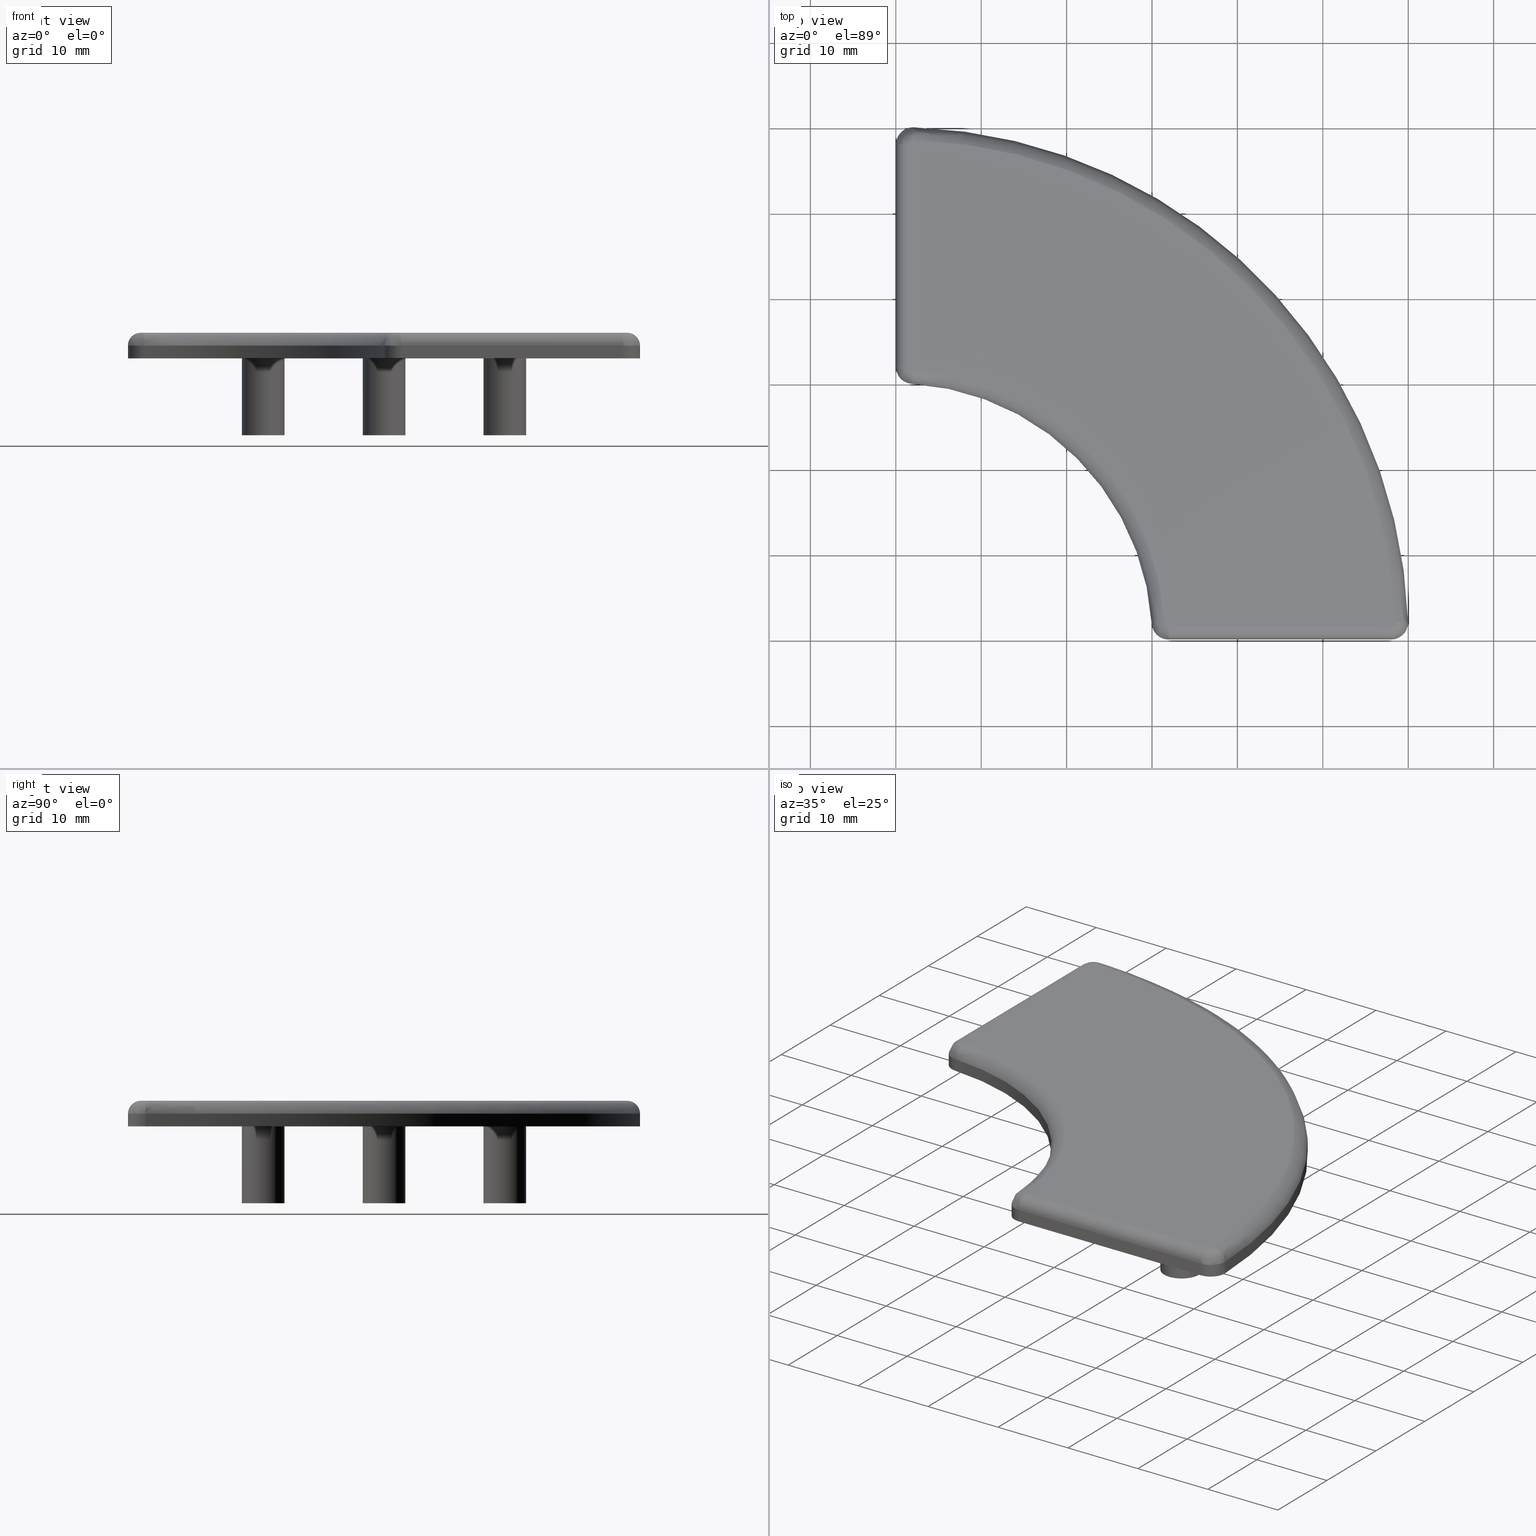
[diagram: canonical four-view strip — front | top / right | iso, engineering-drawing reading convention]
A machine part, canonical four-view strip (front | top / right | iso — engineering-drawing reading convention). The complete STEP part file that produces these views, byte-faithful:
ISO-10303-21;
HEADER;
/****************************************************************
 * Generated by software with PDE/Lib inside                    *
 * PDElib Version v4.4, created Mon 02/23/2004                  *
 * International Technegroup Inc. (www.iti-oh.com)              *
 ****************************************************************/
FILE_DESCRIPTION(('STEP AP203'),'2;1');
FILE_NAME('18.016.00.stp','2011-09-08T18:05:03',(''),(''),'2009.3.110','THINKDESIGN','');
FILE_SCHEMA(('CONFIG_CONTROL_DESIGN'));
ENDSEC;
DATA;
#2=CARTESIAN_POINT('',(-35.980106959879357,-35.976389881100047,0.0));
#3=DIRECTION('',(0.0,0.0,1.0));
#4=DIRECTION('',(1.0,0.0,0.0));
#5=AXIS2_PLACEMENT_3D('',#2,#3,#4);
#6=PLANE('',#5);
#7=CARTESIAN_POINT('',(27.983366097920932,-29.980268532271502,0.0));
#8=VERTEX_POINT('',#7);
#9=CARTESIAN_POINT('',(29.982170704958794,-27.911129954875797,0.0));
#10=VERTEX_POINT('',#9);
#11=CARTESIAN_POINT('',(27.983366097920932,-27.980268532271502,0.0));
#12=DIRECTION('',(0.0,0.0,1.0));
#13=DIRECTION('',(0.0,-1.0,0.0));
#14=AXIS2_PLACEMENT_3D('',#11,#12,#13);
#15=CIRCLE('',#14,2.0);
#16=EDGE_CURVE('',#8,#10,#15,.T.);
#17=ORIENTED_EDGE('',*,*,#16,.F.);
#18=CARTESIAN_POINT('',(1.954065934955320,-29.980268532271502,0.0));
#19=VERTEX_POINT('',#18);
#20=CARTESIAN_POINT('',(1.954065934955320,-29.980268532271502,0.0));
#21=DIRECTION('',(1.0,0.0,0.0));
#22=VECTOR('',#21,26.029300162965612);
#23=LINE('',#20,#22);
#24=EDGE_CURVE('',#19,#8,#23,.T.);
#25=ORIENTED_EDGE('',*,*,#24,.F.);
#26=CARTESIAN_POINT('',(-0.042023575047292,-28.105275204323554,0.0));
#27=VERTEX_POINT('',#26);
#28=CARTESIAN_POINT('',(1.954065934955320,-27.980268532271502,0.0));
#29=DIRECTION('',(0.0,0.0,1.0));
#30=DIRECTION('',(-0.998044755001306,-0.062503336026028,0.0));
#31=AXIS2_PLACEMENT_3D('',#28,#29,#30);
#32=CIRCLE('',#31,2.000000000000000);
#33=EDGE_CURVE('',#27,#19,#32,.T.);
#34=ORIENTED_EDGE('',*,*,#33,.F.);
#35=CARTESIAN_POINT('',(-28.108366232074818,-0.039026367158044,0.0));
#36=VERTEX_POINT('',#35);
#37=CARTESIAN_POINT('',(-29.983366225086488,-29.980375285104387,0.0));
#38=DIRECTION('',(0.0,0.0,-1.0));
#39=DIRECTION('',(0.998044755001306,0.062503336026028,0.0));
#40=AXIS2_PLACEMENT_3D('',#37,#38,#39);
#41=CIRCLE('',#40,30.000000000000007);
#42=EDGE_CURVE('',#36,#27,#41,.T.);
#43=ORIENTED_EDGE('',*,*,#42,.F.);
#44=CARTESIAN_POINT('',(-29.983366232540707,1.957063560705038,0.0));
#45=VERTEX_POINT('',#44);
#46=CARTESIAN_POINT('',(-27.983366232540707,1.957063560705034,0.0));
#47=DIRECTION('',(0.0,0.0,1.0));
#48=DIRECTION('',(-1.0,1.776357E-015,0.0));
#49=AXIS2_PLACEMENT_3D('',#46,#47,#48);
#50=CIRCLE('',#49,2.0);
#51=EDGE_CURVE('',#45,#36,#50,.T.);
#52=ORIENTED_EDGE('',*,*,#51,.F.);
#53=CARTESIAN_POINT('',(-29.983366232540707,27.985132103185499,0.0));
#54=VERTEX_POINT('',#53);
#55=CARTESIAN_POINT('',(-29.983366232540707,27.985132103185499,0.0));
#56=DIRECTION('',(0.0,-1.0,0.0));
#57=VECTOR('',#56,26.028068542480462);
#58=LINE('',#55,#57);
#59=EDGE_CURVE('',#54,#45,#58,.T.);
#60=ORIENTED_EDGE('',*,*,#59,.F.);
#61=CARTESIAN_POINT('',(-27.913001899711862,29.979030290613615,0.0));
#62=VERTEX_POINT('',#61);
#63=CARTESIAN_POINT('',(-27.983372145802594,27.980268666891284,0.0));
#64=DIRECTION('',(0.0,0.0,1.0));
#65=DIRECTION('',(0.035185123045367,0.999380811861166,0.0));
#66=AXIS2_PLACEMENT_3D('',#63,#64,#65);
#67=CIRCLE('',#66,2.000000000000000);
#68=EDGE_CURVE('',#62,#54,#67,.T.);
#69=ORIENTED_EDGE('',*,*,#68,.F.);
#70=CARTESIAN_POINT('',(-29.981967506176463,-29.985287276746956,0.0));
#71=DIRECTION('',(0.0,0.0,1.0));
#72=DIRECTION('',(0.999999996501695,0.000083645741258,0.0));
#73=AXIS2_PLACEMENT_3D('',#70,#71,#72);
#74=CIRCLE('',#73,60.000000000000014);
#75=EDGE_CURVE('',#10,#62,#74,.T.);
#76=ORIENTED_EDGE('',*,*,#75,.F.);
#77=EDGE_LOOP('',(#17,#25,#34,#43,#52,#60,#69,#76));
#78=FACE_OUTER_BOUND('',#77,.T.);
#79=CARTESIAN_POINT('',(1.767766952966369,-1.767766952966369,0.0));
#80=VERTEX_POINT('',#79);
#81=CARTESIAN_POINT('',(-1.767766952966369,1.767766952966369,0.0));
#82=VERTEX_POINT('',#81);
#83=CARTESIAN_POINT('',(0.0,0.0,0.0));
#84=DIRECTION('',(0.0,0.0,-1.0));
#85=DIRECTION('',(-0.707106781186548,0.707106781186547,0.0));
#86=AXIS2_PLACEMENT_3D('',#83,#84,#85);
#87=CIRCLE('',#86,2.500000000000000);
#88=EDGE_CURVE('',#80,#82,#87,.T.);
#89=ORIENTED_EDGE('',*,*,#88,.F.);
#90=CARTESIAN_POINT('',(0.0,0.0,0.0));
#91=DIRECTION('',(0.0,0.0,-1.0));
#92=DIRECTION('',(-0.707106781186548,0.707106781186547,0.0));
#93=AXIS2_PLACEMENT_3D('',#90,#91,#92);
#94=CIRCLE('',#93,2.500000000000000);
#95=EDGE_CURVE('',#82,#80,#94,.T.);
#96=ORIENTED_EDGE('',*,*,#95,.F.);
#97=EDGE_LOOP('',(#89,#96));
#98=FACE_BOUND('',#97,.T.);
#99=CARTESIAN_POINT('',(-12.374368670764587,12.374368670764575,0.0));
#100=VERTEX_POINT('',#99);
#101=CARTESIAN_POINT('',(-15.909902576697325,15.909902576697313,0.0));
#102=VERTEX_POINT('',#101);
#103=CARTESIAN_POINT('',(-14.142135623730956,14.142135623730944,0.0));
#104=DIRECTION('',(0.0,0.0,-1.0));
#105=DIRECTION('',(-0.707106781186548,0.707106781186547,0.0));
#106=AXIS2_PLACEMENT_3D('',#103,#104,#105);
#107=CIRCLE('',#106,2.500000000000000);
#108=EDGE_CURVE('',#100,#102,#107,.T.);
#109=ORIENTED_EDGE('',*,*,#108,.F.);
#110=CARTESIAN_POINT('',(-14.142135623730956,14.142135623730944,0.0));
#111=DIRECTION('',(0.0,0.0,-1.0));
#112=DIRECTION('',(-0.707106781186548,0.707106781186547,0.0));
#113=AXIS2_PLACEMENT_3D('',#110,#111,#112);
#114=CIRCLE('',#113,2.500000000000000);
#115=EDGE_CURVE('',#102,#100,#114,.T.);
#116=ORIENTED_EDGE('',*,*,#115,.F.);
#117=EDGE_LOOP('',(#109,#116));
#118=FACE_BOUND('',#117,.T.);
#119=CARTESIAN_POINT('',(15.909902576697315,-15.909902576697323,0.0));
#120=VERTEX_POINT('',#119);
#121=CARTESIAN_POINT('',(12.374368670764579,-12.374368670764586,0.0));
#122=VERTEX_POINT('',#121);
#123=CARTESIAN_POINT('',(14.142135623730946,-14.142135623730955,0.0));
#124=DIRECTION('',(0.0,0.0,-1.0));
#125=DIRECTION('',(-0.707106781186547,0.707106781186548,0.0));
#126=AXIS2_PLACEMENT_3D('',#123,#124,#125);
#127=CIRCLE('',#126,2.500000000000000);
#128=EDGE_CURVE('',#120,#122,#127,.T.);
#129=ORIENTED_EDGE('',*,*,#128,.F.);
#130=CARTESIAN_POINT('',(14.142135623730946,-14.142135623730955,0.0));
#131=DIRECTION('',(0.0,0.0,-1.0));
#132=DIRECTION('',(-0.707106781186547,0.707106781186548,0.0));
#133=AXIS2_PLACEMENT_3D('',#130,#131,#132);
#134=CIRCLE('',#133,2.500000000000000);
#135=EDGE_CURVE('',#122,#120,#134,.T.);
#136=ORIENTED_EDGE('',*,*,#135,.F.);
#137=EDGE_LOOP('',(#129,#136));
#138=FACE_BOUND('',#137,.T.);
#139=ADVANCED_FACE('',(#78,#98,#118,#138),#6,.F.);
#140=CARTESIAN_POINT('',(-35.980106959879357,-35.976389881100047,3.0));
#141=DIRECTION('',(0.0,0.0,1.0));
#142=DIRECTION('',(1.0,0.0,0.0));
#143=AXIS2_PLACEMENT_3D('',#140,#141,#142);
#144=PLANE('',#143);
#145=CARTESIAN_POINT('',(1.954065934955317,-28.480268532271502,3.0));
#146=VERTEX_POINT('',#145);
#147=CARTESIAN_POINT('',(27.983366097920932,-28.480268532271502,3.0));
#148=VERTEX_POINT('',#147);
#149=CARTESIAN_POINT('',(1.954065934955317,-28.480268532271502,3.0));
#150=DIRECTION('',(1.0,0.0,0.0));
#151=VECTOR('',#150,26.029300162965615);
#152=LINE('',#149,#151);
#153=EDGE_CURVE('',#146,#148,#152,.T.);
#154=ORIENTED_EDGE('',*,*,#153,.T.);
#155=CARTESIAN_POINT('',(28.483067249680406,-27.962983887922576,3.0));
#156=VERTEX_POINT('',#155);
#157=CARTESIAN_POINT('',(27.983366097920932,-27.980268532271502,3.0));
#158=DIRECTION('',(0.0,0.0,1.0));
#159=DIRECTION('',(0.0,-1.0,0.0));
#160=AXIS2_PLACEMENT_3D('',#157,#158,#159);
#161=CIRCLE('',#160,0.500000000000000);
#162=EDGE_CURVE('',#148,#156,#161,.T.);
#163=ORIENTED_EDGE('',*,*,#162,.T.);
#164=CARTESIAN_POINT('',(-27.965252812076695,28.479940712125739,3.0));
#165=VERTEX_POINT('',#164);
#166=CARTESIAN_POINT('',(-29.981967851583388,-29.985287427758109,3.0));
#167=DIRECTION('',(0.0,0.0,1.0));
#168=DIRECTION('',(0.999999996501695,0.000083645741258,0.0));
#169=AXIS2_PLACEMENT_3D('',#166,#167,#168);
#170=CIRCLE('',#169,58.500000350420841);
#171=EDGE_CURVE('',#156,#165,#170,.T.);
#172=ORIENTED_EDGE('',*,*,#171,.T.);
#173=CARTESIAN_POINT('',(-28.483372146986138,27.980268179163566,3.0));
#174=VERTEX_POINT('',#173);
#175=CARTESIAN_POINT('',(-27.983371229731816,27.980268179163566,3.0));
#176=DIRECTION('',(0.0,0.0,1.0));
#177=DIRECTION('',(0.035185123045367,0.999380811861166,0.0));
#178=AXIS2_PLACEMENT_3D('',#175,#176,#177);
#179=CIRCLE('',#178,0.500000917254318);
#180=EDGE_CURVE('',#165,#174,#179,.T.);
#181=ORIENTED_EDGE('',*,*,#180,.T.);
#182=CARTESIAN_POINT('',(-28.483366232540707,1.957063560705034,3.0));
#183=VERTEX_POINT('',#182);
#184=CARTESIAN_POINT('',(-28.483366232540707,27.980268179163566,3.0));
#185=DIRECTION('',(0.0,-1.0,0.0));
#186=VECTOR('',#185,26.023204618458529);
#187=LINE('',#184,#186);
#188=EDGE_CURVE('',#174,#183,#187,.T.);
#189=ORIENTED_EDGE('',*,*,#188,.T.);
#190=CARTESIAN_POINT('',(-28.014616232424235,1.458041078739274,3.0));
#191=VERTEX_POINT('',#190);
#192=CARTESIAN_POINT('',(-27.983366232540707,1.957063560705031,3.0));
#193=DIRECTION('',(0.0,0.0,1.0));
#194=DIRECTION('',(-1.0,1.776357E-015,0.0));
#195=AXIS2_PLACEMENT_3D('',#192,#193,#194);
#196=CIRCLE('',#195,0.500000000000000);
#197=EDGE_CURVE('',#183,#191,#196,.T.);
#198=ORIENTED_EDGE('',*,*,#197,.T.);
#199=CARTESIAN_POINT('',(1.455043557454665,-28.011520200284515,3.0));
#200=VERTEX_POINT('',#199);
#201=CARTESIAN_POINT('',(-29.983366225086488,-29.980375285104387,3.0));
#202=DIRECTION('',(0.0,0.0,-1.0));
#203=DIRECTION('',(0.998044755001306,0.062503336026028,0.0));
#204=AXIS2_PLACEMENT_3D('',#201,#202,#203);
#205=CIRCLE('',#204,31.500000000000007);
#206=EDGE_CURVE('',#191,#200,#205,.T.);
#207=ORIENTED_EDGE('',*,*,#206,.T.);
#208=CARTESIAN_POINT('',(1.954065934955317,-27.980268532271502,3.0));
#209=DIRECTION('',(0.0,0.0,1.0));
#210=DIRECTION('',(-0.998044755001306,-0.062503336026028,0.0));
#211=AXIS2_PLACEMENT_3D('',#208,#209,#210);
#212=CIRCLE('',#211,0.500000000000000);
#213=EDGE_CURVE('',#200,#146,#212,.T.);
#214=ORIENTED_EDGE('',*,*,#213,.T.);
#215=EDGE_LOOP('',(#154,#163,#172,#181,#189,#198,#207,#214));
#216=FACE_OUTER_BOUND('',#215,.T.);
#217=ADVANCED_FACE('',(#216),#144,.T.);
#218=CARTESIAN_POINT('',(27.983366097920932,-27.980268532271502,0.0));
#219=DIRECTION('',(0.0,0.0,1.0));
#220=DIRECTION('',(0.0,-1.0,0.0));
#221=AXIS2_PLACEMENT_3D('',#218,#219,#220);
#222=CYLINDRICAL_SURFACE('',#221,2.0);
#223=CARTESIAN_POINT('',(29.982170704958794,-27.911129954875797,1.500000000000000));
#224=VERTEX_POINT('',#223);
#225=CARTESIAN_POINT('',(29.982170704958794,-27.911129954875797,0.0));
#226=DIRECTION('',(0.0,0.0,1.0));
#227=VECTOR('',#226,1.500000000000000);
#228=LINE('',#225,#227);
#229=EDGE_CURVE('',#10,#224,#228,.T.);
#230=ORIENTED_EDGE('',*,*,#229,.T.);
#231=CARTESIAN_POINT('',(27.983366097920932,-29.980268532271502,1.500000000000000));
#232=VERTEX_POINT('',#231);
#233=CARTESIAN_POINT('',(27.983366097920932,-27.980268532271502,1.500000000000000));
#234=DIRECTION('',(0.0,0.0,1.0));
#235=DIRECTION('',(0.0,-1.0,0.0));
#236=AXIS2_PLACEMENT_3D('',#233,#234,#235);
#237=CIRCLE('',#236,2.0);
#238=EDGE_CURVE('',#232,#224,#237,.T.);
#239=ORIENTED_EDGE('',*,*,#238,.F.);
#240=CARTESIAN_POINT('',(27.983366097920932,-29.980268532271502,0.0));
#241=DIRECTION('',(0.0,0.0,1.0));
#242=VECTOR('',#241,1.500000000000000);
#243=LINE('',#240,#242);
#244=EDGE_CURVE('',#8,#232,#243,.T.);
#245=ORIENTED_EDGE('',*,*,#244,.F.);
#246=ORIENTED_EDGE('',*,*,#16,.T.);
#247=EDGE_LOOP('',(#230,#239,#245,#246));
#248=FACE_OUTER_BOUND('',#247,.T.);
#249=ADVANCED_FACE('',(#248),#222,.T.);
#250=CARTESIAN_POINT('',(-29.981967506176463,-29.985287276746952,0.0));
#251=DIRECTION('',(0.0,0.0,1.0));
#252=DIRECTION('',(0.999999996501695,0.000083645741258,0.0));
#253=AXIS2_PLACEMENT_3D('',#250,#251,#252);
#254=CYLINDRICAL_SURFACE('',#253,60.000000000000014);
#255=ORIENTED_EDGE('',*,*,#75,.T.);
#256=CARTESIAN_POINT('',(-27.913001899711862,29.979030290613615,1.500000000000000));
#257=VERTEX_POINT('',#256);
#258=CARTESIAN_POINT('',(-27.913001899711862,29.979030290613615,0.0));
#259=DIRECTION('',(0.0,0.0,1.0));
#260=VECTOR('',#259,1.500000000000000);
#261=LINE('',#258,#260);
#262=EDGE_CURVE('',#62,#257,#261,.T.);
#263=ORIENTED_EDGE('',*,*,#262,.T.);
#264=CARTESIAN_POINT('',(-29.981967506176463,-29.985287276746956,1.500000000000000));
#265=DIRECTION('',(0.0,0.0,1.0));
#266=DIRECTION('',(0.999999996501695,0.000083645741258,0.0));
#267=AXIS2_PLACEMENT_3D('',#264,#265,#266);
#268=CIRCLE('',#267,60.000000000000014);
#269=EDGE_CURVE('',#224,#257,#268,.T.);
#270=ORIENTED_EDGE('',*,*,#269,.F.);
#271=ORIENTED_EDGE('',*,*,#229,.F.);
#272=EDGE_LOOP('',(#255,#263,#270,#271));
#273=FACE_OUTER_BOUND('',#272,.T.);
#274=ADVANCED_FACE('',(#273),#254,.T.);
#275=CARTESIAN_POINT('',(-27.983372145802594,27.980268666891284,0.0));
#276=DIRECTION('',(0.0,0.0,1.0));
#277=DIRECTION('',(0.035185123045367,0.999380811861166,0.0));
#278=AXIS2_PLACEMENT_3D('',#275,#276,#277);
#279=CYLINDRICAL_SURFACE('',#278,2.000000000000000);
#280=ORIENTED_EDGE('',*,*,#68,.T.);
#281=CARTESIAN_POINT('',(-29.983366232540707,27.985132103185499,1.500000000000000));
#282=VERTEX_POINT('',#281);
#283=CARTESIAN_POINT('',(-29.983366232540707,27.985132103185499,0.0));
#284=DIRECTION('',(0.0,0.0,1.0));
#285=VECTOR('',#284,1.500000000000000);
#286=LINE('',#283,#285);
#287=EDGE_CURVE('',#54,#282,#286,.T.);
#288=ORIENTED_EDGE('',*,*,#287,.T.);
#289=CARTESIAN_POINT('',(-27.983372145802594,27.980268666891284,1.500000000000000));
#290=DIRECTION('',(0.0,0.0,1.0));
#291=DIRECTION('',(0.035185123045367,0.999380811861166,0.0));
#292=AXIS2_PLACEMENT_3D('',#289,#290,#291);
#293=CIRCLE('',#292,2.000000000000000);
#294=EDGE_CURVE('',#257,#282,#293,.T.);
#295=ORIENTED_EDGE('',*,*,#294,.F.);
#296=ORIENTED_EDGE('',*,*,#262,.F.);
#297=EDGE_LOOP('',(#280,#288,#295,#296));
#298=FACE_OUTER_BOUND('',#297,.T.);
#299=ADVANCED_FACE('',(#298),#279,.T.);
#300=CARTESIAN_POINT('',(-29.983366232540707,27.985132103185499,0.0));
#301=DIRECTION('',(-1.0,0.0,0.0));
#302=DIRECTION('',(0.0,-1.0,0.0));
#303=AXIS2_PLACEMENT_3D('',#300,#301,#302);
#304=PLANE('',#303);
#305=ORIENTED_EDGE('',*,*,#59,.T.);
#306=CARTESIAN_POINT('',(-29.983366232540707,1.957063560705038,1.500000000000000));
#307=VERTEX_POINT('',#306);
#308=CARTESIAN_POINT('',(-29.983366232540707,1.957063560705038,0.0));
#309=DIRECTION('',(0.0,0.0,1.0));
#310=VECTOR('',#309,1.500000000000000);
#311=LINE('',#308,#310);
#312=EDGE_CURVE('',#45,#307,#311,.T.);
#313=ORIENTED_EDGE('',*,*,#312,.T.);
#314=CARTESIAN_POINT('',(-29.983366232540707,27.985132103185499,1.500000000000000));
#315=DIRECTION('',(0.0,-1.0,0.0));
#316=VECTOR('',#315,26.028068542480462);
#317=LINE('',#314,#316);
#318=EDGE_CURVE('',#282,#307,#317,.T.);
#319=ORIENTED_EDGE('',*,*,#318,.F.);
#320=ORIENTED_EDGE('',*,*,#287,.F.);
#321=EDGE_LOOP('',(#305,#313,#319,#320));
#322=FACE_OUTER_BOUND('',#321,.T.);
#323=ADVANCED_FACE('',(#322),#304,.T.);
#324=CARTESIAN_POINT('',(-27.983366232540707,1.957063560705034,0.0));
#325=DIRECTION('',(0.0,0.0,1.0));
#326=DIRECTION('',(-1.0,1.776357E-015,0.0));
#327=AXIS2_PLACEMENT_3D('',#324,#325,#326);
#328=CYLINDRICAL_SURFACE('',#327,2.0);
#329=ORIENTED_EDGE('',*,*,#51,.T.);
#330=CARTESIAN_POINT('',(-28.108366232074818,-0.039026367158044,1.500000000000000));
#331=VERTEX_POINT('',#330);
#332=CARTESIAN_POINT('',(-28.108366232074818,-0.039026367158044,0.0));
#333=DIRECTION('',(0.0,0.0,1.0));
#334=VECTOR('',#333,1.500000000000000);
#335=LINE('',#332,#334);
#336=EDGE_CURVE('',#36,#331,#335,.T.);
#337=ORIENTED_EDGE('',*,*,#336,.T.);
#338=CARTESIAN_POINT('',(-27.983366232540707,1.957063560705034,1.500000000000000));
#339=DIRECTION('',(0.0,0.0,1.0));
#340=DIRECTION('',(-1.0,1.776357E-015,0.0));
#341=AXIS2_PLACEMENT_3D('',#338,#339,#340);
#342=CIRCLE('',#341,2.0);
#343=EDGE_CURVE('',#307,#331,#342,.T.);
#344=ORIENTED_EDGE('',*,*,#343,.F.);
#345=ORIENTED_EDGE('',*,*,#312,.F.);
#346=EDGE_LOOP('',(#329,#337,#344,#345));
#347=FACE_OUTER_BOUND('',#346,.T.);
#348=ADVANCED_FACE('',(#347),#328,.T.);
#349=CARTESIAN_POINT('',(-29.983366225086488,-29.980375285104387,0.0));
#350=DIRECTION('',(0.0,0.0,-1.0));
#351=DIRECTION('',(0.062499999767056,0.998044963931545,0.0));
#352=AXIS2_PLACEMENT_3D('',#349,#350,#351);
#353=CYLINDRICAL_SURFACE('',#352,30.000000000000007);
#354=ORIENTED_EDGE('',*,*,#42,.T.);
#355=CARTESIAN_POINT('',(-0.042023575047292,-28.105275204323554,1.500000000000000));
#356=VERTEX_POINT('',#355);
#357=CARTESIAN_POINT('',(-0.042023575047292,-28.105275204323554,0.0));
#358=DIRECTION('',(0.0,0.0,1.0));
#359=VECTOR('',#358,1.500000000000000);
#360=LINE('',#357,#359);
#361=EDGE_CURVE('',#27,#356,#360,.T.);
#362=ORIENTED_EDGE('',*,*,#361,.T.);
#363=CARTESIAN_POINT('',(-29.983366225086488,-29.980375285104387,1.500000000000000));
#364=DIRECTION('',(0.0,0.0,-1.0));
#365=DIRECTION('',(0.998044755001306,0.062503336026028,0.0));
#366=AXIS2_PLACEMENT_3D('',#363,#364,#365);
#367=CIRCLE('',#366,30.000000000000007);
#368=EDGE_CURVE('',#331,#356,#367,.T.);
#369=ORIENTED_EDGE('',*,*,#368,.F.);
#370=ORIENTED_EDGE('',*,*,#336,.F.);
#371=EDGE_LOOP('',(#354,#362,#369,#370));
#372=FACE_OUTER_BOUND('',#371,.T.);
#373=ADVANCED_FACE('',(#372),#353,.F.);
#374=CARTESIAN_POINT('',(1.954065934955320,-27.980268532271502,0.0));
#375=DIRECTION('',(0.0,0.0,1.0));
#376=DIRECTION('',(-0.998044755001306,-0.062503336026028,0.0));
#377=AXIS2_PLACEMENT_3D('',#374,#375,#376);
#378=CYLINDRICAL_SURFACE('',#377,2.000000000000000);
#379=ORIENTED_EDGE('',*,*,#33,.T.);
#380=CARTESIAN_POINT('',(1.954065934955320,-29.980268532271502,1.500000000000000));
#381=VERTEX_POINT('',#380);
#382=CARTESIAN_POINT('',(1.954065934955320,-29.980268532271502,0.0));
#383=DIRECTION('',(0.0,0.0,1.0));
#384=VECTOR('',#383,1.500000000000000);
#385=LINE('',#382,#384);
#386=EDGE_CURVE('',#19,#381,#385,.T.);
#387=ORIENTED_EDGE('',*,*,#386,.T.);
#388=CARTESIAN_POINT('',(1.954065934955320,-27.980268532271502,1.500000000000000));
#389=DIRECTION('',(0.0,0.0,1.0));
#390=DIRECTION('',(-0.998044755001306,-0.062503336026028,0.0));
#391=AXIS2_PLACEMENT_3D('',#388,#389,#390);
#392=CIRCLE('',#391,2.000000000000000);
#393=EDGE_CURVE('',#356,#381,#392,.T.);
#394=ORIENTED_EDGE('',*,*,#393,.F.);
#395=ORIENTED_EDGE('',*,*,#361,.F.);
#396=EDGE_LOOP('',(#379,#387,#394,#395));
#397=FACE_OUTER_BOUND('',#396,.T.);
#398=ADVANCED_FACE('',(#397),#378,.T.);
#399=CARTESIAN_POINT('',(1.954065934955320,-29.980268532271502,0.0));
#400=DIRECTION('',(0.0,-1.0,0.0));
#401=DIRECTION('',(1.0,0.0,0.0));
#402=AXIS2_PLACEMENT_3D('',#399,#400,#401);
#403=PLANE('',#402);
#404=ORIENTED_EDGE('',*,*,#24,.T.);
#405=ORIENTED_EDGE('',*,*,#244,.T.);
#406=CARTESIAN_POINT('',(1.954065934955320,-29.980268532271502,1.500000000000000));
#407=DIRECTION('',(1.0,0.0,0.0));
#408=VECTOR('',#407,26.029300162965612);
#409=LINE('',#406,#408);
#410=EDGE_CURVE('',#381,#232,#409,.T.);
#411=ORIENTED_EDGE('',*,*,#410,.F.);
#412=ORIENTED_EDGE('',*,*,#386,.F.);
#413=EDGE_LOOP('',(#404,#405,#411,#412));
#414=FACE_OUTER_BOUND('',#413,.T.);
#415=ADVANCED_FACE('',(#414),#403,.T.);
#416=CARTESIAN_POINT('',(1.954065934955317,-28.480268532271502,1.500000000000000));
#417=DIRECTION('',(-1.0,-2.368476E-015,0.0));
#418=DIRECTION('',(2.368476E-015,-1.0,0.0));
#419=AXIS2_PLACEMENT_3D('',#416,#417,#418);
#420=CYLINDRICAL_SURFACE('',#419,1.500000000000000);
#421=ORIENTED_EDGE('',*,*,#410,.T.);
#422=CARTESIAN_POINT('',(27.983366097920932,-28.480268532271502,1.500000000000000));
#423=DIRECTION('',(-1.0,0.0,0.0));
#424=DIRECTION('',(0.0,-1.0,0.0));
#425=AXIS2_PLACEMENT_3D('',#422,#423,#424);
#426=CIRCLE('',#425,1.500000000000000);
#427=EDGE_CURVE('',#232,#148,#426,.T.);
#428=ORIENTED_EDGE('',*,*,#427,.T.);
#429=ORIENTED_EDGE('',*,*,#153,.F.);
#430=CARTESIAN_POINT('',(1.954065934955317,-28.480268532271502,1.500000000000000));
#431=DIRECTION('',(-1.0,-2.368476E-015,0.0));
#432=DIRECTION('',(2.368476E-015,-1.0,0.0));
#433=AXIS2_PLACEMENT_3D('',#430,#431,#432);
#434=CIRCLE('',#433,1.500000000000000);
#435=EDGE_CURVE('',#381,#146,#434,.T.);
#436=ORIENTED_EDGE('',*,*,#435,.F.);
#437=EDGE_LOOP('',(#421,#428,#429,#436));
#438=FACE_OUTER_BOUND('',#437,.T.);
#439=ADVANCED_FACE('',(#438),#420,.T.);
#440=CARTESIAN_POINT('',(-0.042023575047292,-28.105275204323558,1.500000000000000));
#441=CARTESIAN_POINT('',(-0.042023575047292,-28.105275204323558,1.695090322016128));
#442=CARTESIAN_POINT('',(0.035881966291268,-28.100396308658631,2.089541726014911));
#443=CARTESIAN_POINT('',(0.369051730195964,-28.079531290729641,2.588119367209420));
#444=CARTESIAN_POINT('',(0.866654529951064,-28.048368524886989,2.921941835826330));
#445=CARTESIAN_POINT('',(1.260334684814952,-28.023713996236914,3.000000000000000));
#446=CARTESIAN_POINT('',(1.455043557454664,-28.011520200284515,3.0));
#447=CARTESIAN_POINT('',(-0.026404687582270,-28.354675471645553,1.500000000000000));
#448=CARTESIAN_POINT('',(-0.026404687582269,-28.354675471645553,1.695090322016128));
#449=CARTESIAN_POINT('',(0.050891262915304,-28.340062712474836,2.089541726014911));
#450=CARTESIAN_POINT('',(0.381454059034688,-28.277569988090278,2.588119367209420));
#451=CARTESIAN_POINT('',(0.875163244754573,-28.184234523750284,2.921941835826330));
#452=CARTESIAN_POINT('',(1.265762953573716,-28.110391852298793,3.000000000000000));
#453=CARTESIAN_POINT('',(1.458948279320938,-28.073870267115012,3.0));
#454=CARTESIAN_POINT('',(0.100821764791604,-28.852521500918474,1.500000000000000));
#455=CARTESIAN_POINT('',(0.100821764791604,-28.852521500918474,1.695090322016128));
#456=CARTESIAN_POINT('',(0.173152183635875,-28.818478268204650,2.089541726014912));
#457=CARTESIAN_POINT('',(0.482479455552848,-28.672889448578609,2.588119367209421));
#458=CARTESIAN_POINT('',(0.944472509011705,-28.455446534762132,2.921941835826331));
#459=CARTESIAN_POINT('',(1.309979891448528,-28.283415830699681,3.0));
#460=CARTESIAN_POINT('',(1.490754892414379,-28.198331774433246,3.000000000000001));
#461=CARTESIAN_POINT('',(0.552099430610144,-29.472780847374587,1.500000000000000));
#462=CARTESIAN_POINT('',(0.552099430610144,-29.472780847374587,1.695090322016128));
#463=CARTESIAN_POINT('',(0.606816896391222,-29.414529461712807,2.089541726014910));
#464=CARTESIAN_POINT('',(0.840820856090585,-29.165412388978382,2.588119367209419));
#465=CARTESIAN_POINT('',(1.190315432475645,-28.793345754219462,2.921941835826329));
#466=CARTESIAN_POINT('',(1.466819260474755,-28.498983965130510,2.999999999999999));
#467=CARTESIAN_POINT('',(1.603574308869023,-28.353396611047266,2.999999999999999));
#468=CARTESIAN_POINT('',(1.199352377668918,-29.884407876439191,1.500000000000000));
#469=CARTESIAN_POINT('',(1.199352377668918,-29.884407876439191,1.695090322016129));
#470=CARTESIAN_POINT('',(1.228808155048295,-29.810091065670886,2.089541726014913));
#471=CARTESIAN_POINT('',(1.354778326444293,-29.492268817440578,2.588119367209423));
#472=CARTESIAN_POINT('',(1.542919979028976,-29.017588166080177,2.921941835826333));
#473=CARTESIAN_POINT('',(1.691768890173244,-28.642042947222045,3.000000000000001));
#474=CARTESIAN_POINT('',(1.765387545633714,-28.456303368313421,3.000000000000001));
#475=CARTESIAN_POINT('',(1.704177073687101,-29.980268532271506,1.500000000000000));
#476=CARTESIAN_POINT('',(1.704177073687100,-29.980268532271506,1.695090322016128));
#477=CARTESIAN_POINT('',(1.713930006566121,-29.902210368097819,2.089541726014912));
#478=CARTESIAN_POINT('',(1.755639264840333,-29.568387899480921,2.588119367209422));
#479=CARTESIAN_POINT('',(1.817933764346277,-29.069810258286441,2.921941835826331));
#480=CARTESIAN_POINT('',(1.867218270431728,-28.675358854287641,3.0));
#481=CARTESIAN_POINT('',(1.891593719638258,-28.480268532271520,3.0));
#482=CARTESIAN_POINT('',(1.954065934955320,-29.980268532271502,1.500000000000000));
#483=CARTESIAN_POINT('',(1.954065934955320,-29.980268532271502,1.695090322016128));
#484=CARTESIAN_POINT('',(1.954065934955318,-29.902210368097819,2.089541726014911));
#485=CARTESIAN_POINT('',(1.954065934955317,-29.568387899480928,2.588119367209421));
#486=CARTESIAN_POINT('',(1.954065934955314,-29.069810258286410,2.921941835826331));
#487=CARTESIAN_POINT('',(1.954065934955314,-28.675358854287630,3.0));
#488=CARTESIAN_POINT('',(1.954065934955313,-28.480268532271502,3.0));
#489=B_SPLINE_SURFACE_WITH_KNOTS('',3,3,((#440,#447,#454,#461,#468,#475,#482),(#441,#448,#455,#462,#469,#476,#483),(#442,#449,#456,#463,#470,#477,#484),(#443,#450,#457,#464,#471,#478,#485),(#444,#451,#458,#465,#472,#479,#486),(#445,#452,#459,#466,#473,#480,#487),(#446,#453,#460,#467,#474,#481,#488)),.UNSPECIFIED.,.F.,.F.,.U.,(4,1,1,1,4),(4,1,1,1,4),(0.0,0.585270966048384,1.170541932096769,1.755812898145153,2.341083864193537),(0.0,0.526303771438132,1.052607542876263,1.578911314314395,2.105215085752527),.UNSPECIFIED.);
#490=ORIENTED_EDGE('',*,*,#435,.T.);
#491=ORIENTED_EDGE('',*,*,#213,.F.);
#492=CARTESIAN_POINT('',(1.455043557454669,-28.011520200284515,1.500000000000000));
#493=DIRECTION('',(-0.062503336026028,0.998044755001306,-1.480297E-016));
#494=DIRECTION('',(-0.998044755001306,-0.062503336026028,0.0));
#495=AXIS2_PLACEMENT_3D('',#492,#493,#494);
#496=CIRCLE('',#495,1.500000000000002);
#497=EDGE_CURVE('',#356,#200,#496,.T.);
#498=ORIENTED_EDGE('',*,*,#497,.F.);
#499=ORIENTED_EDGE('',*,*,#393,.T.);
#500=EDGE_LOOP('',(#490,#491,#498,#499));
#501=FACE_OUTER_BOUND('',#500,.T.);
#502=ADVANCED_FACE('',(#501),#489,.F.);
#503=CARTESIAN_POINT('',(-28.108366232074822,-0.039026367158044,1.500000000000000));
#504=CARTESIAN_POINT('',(-28.108366232074822,-0.039026367158044,1.695090322016128));
#505=CARTESIAN_POINT('',(-28.103487596832153,0.038879190489228,2.089541726014914));
#506=CARTESIAN_POINT('',(-28.082623692621354,0.372049024139533,2.588119367209421));
#507=CARTESIAN_POINT('',(-28.051462590162846,0.869651928062580,2.921941835826332));
#508=CARTESIAN_POINT('',(-28.026809377504801,1.263332165339294,3.0));
#509=CARTESIAN_POINT('',(-28.014616232424238,1.458041078739274,3.0));
#510=CARTESIAN_POINT('',(-26.307213148494238,-0.151818948026114,1.500000000000000));
#511=CARTESIAN_POINT('',(-26.307213148494238,-0.151818948026114,1.695090322016129));
#512=CARTESIAN_POINT('',(-26.297648023148234,-0.074206869772006,2.089541726014914));
#513=CARTESIAN_POINT('',(-26.256741939980177,0.257707873952064,2.588119367209423));
#514=CARTESIAN_POINT('',(-26.195647015660271,0.753436249244664,2.921941835826333));
#515=CARTESIAN_POINT('',(-26.147311557581059,1.145633446791909,3.000000000000000));
#516=CARTESIAN_POINT('',(-26.123405494664627,1.339608868827804,3.0));
#517=CARTESIAN_POINT('',(-22.716912530830928,-0.704758285437701,1.500000000000000));
#518=CARTESIAN_POINT('',(-22.716912530830928,-0.704758285437701,1.695090322016129));
#519=CARTESIAN_POINT('',(-22.698005662983370,-0.628584921502854,2.089541726014915));
#520=CARTESIAN_POINT('',(-22.617148812639819,-0.302822963599118,2.588119367209425));
#521=CARTESIAN_POINT('',(-22.496385767882110,0.183715972007806,2.921941835826333));
#522=CARTESIAN_POINT('',(-22.400843672489074,0.568642912956113,3.000000000000001));
#523=CARTESIAN_POINT('',(-22.353589846118147,0.759022564545641,3.0));
#524=CARTESIAN_POINT('',(-17.574885188430535,-2.487216500522078,1.500000000000000));
#525=CARTESIAN_POINT('',(-17.574885188430535,-2.487216500522078,1.695090322016128));
#526=CARTESIAN_POINT('',(-17.542599080100373,-2.415680983786756,2.089541726014912));
#527=CARTESIAN_POINT('',(-17.404524754385619,-2.109753179268561,2.588119367209418));
#528=CARTESIAN_POINT('',(-17.198305047516854,-1.652837370741793,2.921941835826329));
#529=CARTESIAN_POINT('',(-17.035153621970146,-1.291346867977125,2.999999999999999));
#530=CARTESIAN_POINT('',(-16.954461136597740,-1.112558561292969,3.000000000000000));
#531=CARTESIAN_POINT('',(-12.835174567019898,-5.165196533825680,1.500000000000000));
#532=CARTESIAN_POINT('',(-12.835174567019898,-5.165196533825680,1.695090322016128));
#533=CARTESIAN_POINT('',(-12.790556021695664,-5.100628957260138,2.089541726014911));
#534=CARTESIAN_POINT('',(-12.599740965975281,-4.824500149596085,2.588119367209420));
#535=CARTESIAN_POINT('',(-12.314750801054270,-4.412090373341661,2.921941835826330));
#536=CARTESIAN_POINT('',(-12.089279858535450,-4.085810970044243,3.0));
#537=CARTESIAN_POINT('',(-11.977764984116568,-3.924437596261750,3.0));
#538=CARTESIAN_POINT('',(-8.654442526853810,-8.651380288541475,1.500000000000000));
#539=CARTESIAN_POINT('',(-8.654442526853810,-8.651380288541475,1.695090322016128));
#540=CARTESIAN_POINT('',(-8.598945972597672,-8.595883548771445,2.089541726014913));
#541=CARTESIAN_POINT('',(-8.361610173868144,-8.358546956675756,2.588119367209421));
#542=CARTESIAN_POINT('',(-8.007139358312063,-8.004074956194561,2.921941835826332));
#543=CARTESIAN_POINT('',(-7.726698561693705,-7.723633222118648,3.0));
#544=CARTESIAN_POINT('',(-7.587996341942183,-7.584930538713319,3.0));
#545=CARTESIAN_POINT('',(-5.168244796829001,-12.832100675087942,1.500000000000000));
#546=CARTESIAN_POINT('',(-5.168244796829001,-12.832100675087942,1.695090322016130));
#547=CARTESIAN_POINT('',(-5.103677369414450,-12.787481913927806,2.089541726014917));
#548=CARTESIAN_POINT('',(-4.827549199607471,-12.596665935166605,2.588119367209424));
#549=CARTESIAN_POINT('',(-4.415140376018939,-12.311674391646012,2.921941835826334));
#550=CARTESIAN_POINT('',(-4.088861726426389,-12.086202358443423,3.000000000000001));
#551=CARTESIAN_POINT('',(-3.927488725416119,-11.974686944587120,3.0));
#552=CARTESIAN_POINT('',(-2.490248919661259,-17.571802344534898,1.500000000000000));
#553=CARTESIAN_POINT('',(-2.490248919661259,-17.571802344534898,1.695090322016128));
#554=CARTESIAN_POINT('',(-2.418713510852165,-17.539515997076375,2.089541726014912));
#555=CARTESIAN_POINT('',(-2.112786167889790,-17.401440648708569,2.588119367209421));
#556=CARTESIAN_POINT('',(-1.655871048715695,-17.195219414465267,2.921941835826331));
#557=CARTESIAN_POINT('',(-1.294381091334754,-17.032066780530968,3.000000000000000));
#558=CARTESIAN_POINT('',(-1.115593054390001,-16.951373697506423,3.000000000000000));
#559=CARTESIAN_POINT('',(-0.707773515845575,-22.713823728514846,1.500000000000000));
#560=CARTESIAN_POINT('',(-0.707773515845575,-22.713823728514846,1.695090322016128));
#561=CARTESIAN_POINT('',(-0.631600215112929,-22.694916606035477,2.089541726014913));
#562=CARTESIAN_POINT('',(-0.305838527498859,-22.614058666737066,2.588119367209422));
#563=CARTESIAN_POINT('',(0.180700004419289,-22.493293995580309,2.921941835826331));
#564=CARTESIAN_POINT('',(0.565626625987844,-22.397750613456097,3.0));
#565=CARTESIAN_POINT('',(0.756006119616471,-22.350496150685370,3.0));
#566=CARTESIAN_POINT('',(-0.154822176799541,-26.304122497795468,1.500000000000000));
#567=CARTESIAN_POINT('',(-0.154822176799541,-26.304122497795468,1.695090322016128));
#568=CARTESIAN_POINT('',(-0.077210130520120,-26.294557113008278,2.089541726014912));
#569=CARTESIAN_POINT('',(0.254704476461460,-26.253649920317642,2.588119367209420));
#570=CARTESIAN_POINT('',(0.750432647523507,-26.192553338879932,2.921941835826332));
#571=CARTESIAN_POINT('',(1.142629683493052,-26.144216569766318,3.0));
#572=CARTESIAN_POINT('',(1.336605025614805,-26.120309858430023,3.0));
#573=CARTESIAN_POINT('',(-0.042023575047292,-28.105275204323554,1.500000000000000));
#574=CARTESIAN_POINT('',(-0.042023575047292,-28.105275204323554,1.695090322016128));
#575=CARTESIAN_POINT('',(0.035881966291268,-28.100396308658631,2.089541726014912));
#576=CARTESIAN_POINT('',(0.369051730195963,-28.079531290729637,2.588119367209419));
#577=CARTESIAN_POINT('',(0.866654529951065,-28.048368524886989,2.921941835826332));
#578=CARTESIAN_POINT('',(1.260334684814953,-28.023713996236914,3.0));
#579=CARTESIAN_POINT('',(1.455043557454665,-28.011520200284515,3.0));
#580=B_SPLINE_SURFACE_WITH_KNOTS('',3,3,((#503,#510,#517,#524,#531,#538,#545,#552,#559,#566,#573),(#504,#511,#518,#525,#532,#539,#546,#553,#560,#567,#574),(#505,#512,#519,#526,#533,#540,#547,#554,#561,#568,#575),(#506,#513,#520,#527,#534,#541,#548,#555,#562,#569,#576),(#507,#514,#521,#528,#535,#542,#549,#556,#563,#570,#577),(#508,#515,#522,#529,#536,#543,#550,#557,#564,#571,#578),(#509,#516,#523,#530,#537,#544,#551,#558,#565,#572,#579)),.UNSPECIFIED.,.F.,.F.,.U.,(4,1,1,1,4),(4,1,1,1,1,1,1,1,4),(0.0,0.585270966048385,1.170541932096769,1.755812898145154,2.341083864193539),(0.0,5.521584693829860,11.043169387659713,16.564754081489575,22.086338775319433,27.607923469149284,33.129508162979150,38.651092856809001,44.172677550638852),.UNSPECIFIED.);
#581=ORIENTED_EDGE('',*,*,#497,.T.);
#582=ORIENTED_EDGE('',*,*,#206,.F.);
#583=CARTESIAN_POINT('',(-28.014616232424231,1.458041078739274,1.500000000000000));
#584=DIRECTION('',(-0.998044963931545,0.062499999767055,-2.960595E-016));
#585=DIRECTION('',(-0.062499999767055,-0.998044963931545,0.0));
#586=AXIS2_PLACEMENT_3D('',#583,#584,#585);
#587=CIRCLE('',#586,1.500000000000002);
#588=EDGE_CURVE('',#331,#191,#587,.T.);
#589=ORIENTED_EDGE('',*,*,#588,.F.);
#590=ORIENTED_EDGE('',*,*,#368,.T.);
#591=EDGE_LOOP('',(#581,#582,#589,#590));
#592=FACE_OUTER_BOUND('',#591,.T.);
#593=ADVANCED_FACE('',(#592),#580,.F.);
#594=CARTESIAN_POINT('',(-29.983366232540707,1.957063560705038,1.500000000000000));
#595=CARTESIAN_POINT('',(-29.983366232540707,1.957063560705037,1.695090322016128));
#596=CARTESIAN_POINT('',(-29.905308068367042,1.957063560705037,2.089541726014913));
#597=CARTESIAN_POINT('',(-29.571485599750130,1.957063560705035,2.588119367209421));
#598=CARTESIAN_POINT('',(-29.072907958555604,1.957063560705034,2.921941835826330));
#599=CARTESIAN_POINT('',(-28.678456554556835,1.957063560705034,3.0));
#600=CARTESIAN_POINT('',(-28.483366232540707,1.957063560705034,3.0));
#601=CARTESIAN_POINT('',(-29.983366232540710,1.707174152176508,1.500000000000000));
#602=CARTESIAN_POINT('',(-29.983366232540710,1.707174152176507,1.695090322016128));
#603=CARTESIAN_POINT('',(-29.905308068367056,1.716927106414597,2.089541726014913));
#604=CARTESIAN_POINT('',(-29.571485599750140,1.758636456032702,2.588119367209421));
#605=CARTESIAN_POINT('',(-29.072907958555579,1.820931091964524,2.921941835826330));
#606=CARTESIAN_POINT('',(-28.678456554556853,1.870215705983776,3.0));
#607=CARTESIAN_POINT('',(-28.483366232540696,1.894591208572902,3.0));
#608=CARTESIAN_POINT('',(-29.887505146885886,1.202348328395168,1.500000000000000));
#609=CARTESIAN_POINT('',(-29.887505146885886,1.202348328395167,1.695090322016129));
#610=CARTESIAN_POINT('',(-29.813188352893164,1.231804171149173,2.089541726014914));
#611=CARTESIAN_POINT('',(-29.495366176405049,1.357774622125404,2.588119367209420));
#612=CARTESIAN_POINT('',(-29.020685632194620,1.545916692274712,2.921941835826330));
#613=CARTESIAN_POINT('',(-28.645140498108525,1.694765933776663,3.000000000000000));
#614=CARTESIAN_POINT('',(-28.459400961127013,1.768384752627565,3.000000000000000));
#615=CARTESIAN_POINT('',(-29.475876359653622,0.555094415944133,1.499999999999999));
#616=CARTESIAN_POINT('',(-29.475876359653622,0.555094415944133,1.695090322016127));
#617=CARTESIAN_POINT('',(-29.417625059387113,0.609811984778214,2.089541726014911));
#618=CARTESIAN_POINT('',(-29.168508351852815,0.843816385192626,2.588119367209420));
#619=CARTESIAN_POINT('',(-28.796442262535354,1.193311619803810,2.921941835826329));
#620=CARTESIAN_POINT('',(-28.502080904974328,1.469815968560763,2.999999999999999));
#621=CARTESIAN_POINT('',(-28.356493764318930,1.606571274514808,2.999999999999999));
#622=CARTESIAN_POINT('',(-28.855614651053024,0.103817008460312,1.500000000000001));
#623=CARTESIAN_POINT('',(-28.855614651053024,0.103817008460312,1.695090322016129));
#624=CARTESIAN_POINT('',(-28.821571595926791,0.176147520275013,2.089541726014914));
#625=CARTESIAN_POINT('',(-28.675983535769298,0.485475189788063,2.588119367209421));
#626=CARTESIAN_POINT('',(-28.458541756250554,0.947468837073079,2.921941835826330));
#627=CARTESIAN_POINT('',(-28.286511949591603,1.312976689317511,3.0));
#628=CARTESIAN_POINT('',(-28.201428337168796,1.493751922643844,3.000000000000002));
#629=CARTESIAN_POINT('',(-28.357767097796550,-0.023408279183225,1.500000000000000));
#630=CARTESIAN_POINT('',(-28.357767097796550,-0.023408279183225,1.695090322016128));
#631=CARTESIAN_POINT('',(-28.343154575693106,0.053887718826438,2.089541726014912));
#632=CARTESIAN_POINT('',(-28.280662865147082,0.384450718135336,2.588119367209420));
#633=CARTESIAN_POINT('',(-28.187328915016867,0.878160207327143,2.921941835826329));
#634=CARTESIAN_POINT('',(-28.113487441537607,1.268760156239106,3.000000000000000));
#635=CARTESIAN_POINT('',(-28.076966448854666,1.461945600732981,3.0));
#636=CARTESIAN_POINT('',(-28.108366232074818,-0.039026367158055,1.500000000000000));
#637=CARTESIAN_POINT('',(-28.108366232074818,-0.039026367158055,1.695090322016128));
#638=CARTESIAN_POINT('',(-28.103487596832156,0.038879190489216,2.089541726014912));
#639=CARTESIAN_POINT('',(-28.082623692621343,0.372049024139520,2.588119367209420));
#640=CARTESIAN_POINT('',(-28.051462590162831,0.869651928062565,2.921941835826329));
#641=CARTESIAN_POINT('',(-28.026809377504797,1.263332165339279,3.000000000000000));
#642=CARTESIAN_POINT('',(-28.014616232424235,1.458041078739258,3.0));
#643=B_SPLINE_SURFACE_WITH_KNOTS('',3,3,((#594,#601,#608,#615,#622,#629,#636),(#595,#602,#609,#616,#623,#630,#637),(#596,#603,#610,#617,#624,#631,#638),(#597,#604,#611,#618,#625,#632,#639),(#598,#605,#612,#619,#626,#633,#640),(#599,#606,#613,#620,#627,#634,#641),(#600,#607,#614,#621,#628,#635,#642)),.UNSPECIFIED.,.F.,.F.,.U.,(4,1,1,1,4),(4,1,1,1,4),(0.0,0.585270966048384,1.170541932096768,1.755812898145153,2.341083864193537),(0.0,0.526304924051193,1.052609848102386,1.578914772153579,2.105219696204772),.UNSPECIFIED.);
#644=ORIENTED_EDGE('',*,*,#588,.T.);
#645=ORIENTED_EDGE('',*,*,#197,.F.);
#646=CARTESIAN_POINT('',(-28.483366232540707,1.957063560705038,1.500000000000000));
#647=DIRECTION('',(0.0,1.0,2.368476E-015));
#648=DIRECTION('',(-1.0,0.0,0.0));
#649=AXIS2_PLACEMENT_3D('',#646,#647,#648);
#650=CIRCLE('',#649,1.500000000000000);
#651=EDGE_CURVE('',#307,#183,#650,.T.);
#652=ORIENTED_EDGE('',*,*,#651,.F.);
#653=ORIENTED_EDGE('',*,*,#343,.T.);
#654=EDGE_LOOP('',(#644,#645,#652,#653));
#655=FACE_OUTER_BOUND('',#654,.T.);
#656=ADVANCED_FACE('',(#655),#643,.F.);
#657=CARTESIAN_POINT('',(-28.483366232540707,31.803087819502522,1.500000000000000));
#658=DIRECTION('',(0.0,1.0,0.0));
#659=DIRECTION('',(-1.0,0.0,0.0));
#660=AXIS2_PLACEMENT_3D('',#657,#658,#659);
#661=CYLINDRICAL_SURFACE('',#660,1.500000000000000);
#662=ORIENTED_EDGE('',*,*,#651,.T.);
#663=ORIENTED_EDGE('',*,*,#188,.F.);
#664=CARTESIAN_POINT('',(-28.483369189763422,27.980268179163019,3.0));
#665=CARTESIAN_POINT('',(-28.485244522255019,27.996979167875665,3.0));
#666=CARTESIAN_POINT('',(-28.540616781588849,27.976413031132182,2.999437374996380));
#667=CARTESIAN_POINT('',(-28.582227316773228,27.984806447538141,2.996898180839332));
#668=CARTESIAN_POINT('',(-28.634778556862262,27.982689392034146,2.992672144659013));
#669=CARTESIAN_POINT('',(-28.684192885712235,27.983382233118498,2.986762175686321));
#670=CARTESIAN_POINT('',(-28.734174140702844,27.983318703755458,2.979175105888745));
#671=CARTESIAN_POINT('',(-28.800161582474701,27.983492340251743,2.966834359196263));
#672=CARTESIAN_POINT('',(-28.885700330042571,27.983617209409388,2.946350606378041));
#673=CARTESIAN_POINT('',(-29.007190902006478,27.983830651533246,2.907939579963891));
#674=CARTESIAN_POINT('',(-29.145574956886200,27.984043519474653,2.849440675913836));
#675=CARTESIAN_POINT('',(-29.325618402565674,27.984309834052723,2.748158074854943));
#676=CARTESIAN_POINT('',(-29.488957893121363,27.984532384201849,2.620746267328691));
#677=CARTESIAN_POINT('',(-29.643936875588928,27.984733176155430,2.457138011447690));
#678=CARTESIAN_POINT('',(-29.776342287589454,27.984897375804408,2.274442362817989));
#679=CARTESIAN_POINT('',(-29.901346946977522,27.985045016091064,2.021099695407110));
#680=CARTESIAN_POINT('',(-29.970632309922571,27.985122018256774,1.752146415677405));
#681=CARTESIAN_POINT('',(-29.983366232540707,27.985133474557749,1.569740607079440));
#682=CARTESIAN_POINT('',(-29.983366232540707,27.985132103185492,1.500000000000000));
#683=B_SPLINE_CURVE_WITH_KNOTS('',3,(#664,#665,#666,#667,#668,#669,#670,#671,#672,#673,#674,#675,#676,#677,#678,#679,#680,#681,#682),.UNSPECIFIED.,.F.,.U.,(4,1,1,1,1,1,1,1,1,1,1,1,1,1,1,1,4),(0.0,0.050447657441884,0.100827118537128,0.151206570845116,0.201586015365978,0.251965452900014,0.302344884102290,0.403103729794099,0.515597235473205,0.684337456178215,0.853077639161618,1.134311161542008,1.303051242687230,1.528037963578593,1.809271328457569,2.146751331323022,2.356123202786440),.UNSPECIFIED.);
#684=EDGE_CURVE('',#174,#282,#683,.T.);
#685=ORIENTED_EDGE('',*,*,#684,.T.);
#686=ORIENTED_EDGE('',*,*,#318,.T.);
#687=EDGE_LOOP('',(#662,#663,#685,#686));
#688=FACE_OUTER_BOUND('',#687,.T.);
#689=ADVANCED_FACE('',(#688),#661,.T.);
#690=CARTESIAN_POINT('',(-27.913001899711862,29.979030290613615,1.500000000000000));
#691=CARTESIAN_POINT('',(-27.913001899292297,29.979030302651012,1.695090317540525));
#692=CARTESIAN_POINT('',(-27.915720972069956,29.901019537294939,2.089541708164266));
#693=CARTESIAN_POINT('',(-27.927349324161071,29.567399689414042,2.588119355366287));
#694=CARTESIAN_POINT('',(-27.944716748897264,29.069124649824381,2.921941830963028));
#695=CARTESIAN_POINT('',(-27.958457046933770,28.674912632089065,3.000000000000000));
#696=CARTESIAN_POINT('',(-27.965252812076692,28.479940712125739,3.0));
#697=CARTESIAN_POINT('',(-28.179406236337144,29.988409567514601,1.500000000000000));
#698=CARTESIAN_POINT('',(-28.179400971536868,29.988409387368062,1.695090333076161));
#699=CARTESIAN_POINT('',(-28.171712669698259,29.910035845833757,2.089541753984697));
#700=CARTESIAN_POINT('',(-28.138865053055291,29.574865733233779,2.588119413253647));
#701=CARTESIAN_POINT('',(-28.089816870284093,29.074275723511516,2.921941872598407));
#702=CARTESIAN_POINT('',(-28.051017255545965,28.678232404993768,3.000000014945452));
#703=CARTESIAN_POINT('',(-28.031828534945824,28.482354786690724,3.0));
#704=CARTESIAN_POINT('',(-28.722191443700467,29.898007760821589,1.500000000000000));
#705=CARTESIAN_POINT('',(-28.722175127850242,29.898011625805211,1.695090361598173));
#706=CARTESIAN_POINT('',(-28.693283229854472,29.823181285150643,2.089541838133329));
#707=CARTESIAN_POINT('',(-28.569823921234860,29.503139351637831,2.588119521292870));
#708=CARTESIAN_POINT('',(-28.385466711869622,29.025135400748809,2.921941951514869));
#709=CARTESIAN_POINT('',(-28.239627441096214,28.646957285073093,3.000000043615604));
#710=CARTESIAN_POINT('',(-28.167500544281125,28.459914754664261,2.999999999999999));
#711=CARTESIAN_POINT('',(-29.413450188618587,29.455252977375832,1.500000000000000));
#712=CARTESIAN_POINT('',(-29.413424854474975,29.455274455255207,1.695090388221559));
#713=CARTESIAN_POINT('',(-29.357543150376323,29.397766444270772,2.089541916649962));
#714=CARTESIAN_POINT('',(-29.118714555156330,29.151697668783324,2.588119626872639));
#715=CARTESIAN_POINT('',(-28.762067567736743,28.784138598162528,2.921942031925271));
#716=CARTESIAN_POINT('',(-28.479929278571831,28.493322537944707,3.000000073753027));
#717=CARTESIAN_POINT('',(-28.340392523226537,28.349484611540120,3.000000000000001));
#718=CARTESIAN_POINT('',(-29.877359193879848,28.778009383595744,1.500000000000000));
#719=CARTESIAN_POINT('',(-29.877337821435415,28.778054296263967,1.695090395832628));
#720=CARTESIAN_POINT('',(-29.803366768217998,28.747028153796293,2.089541939409948));
#721=CARTESIAN_POINT('',(-29.487153383712947,28.614068615997752,2.588119667746045));
#722=CARTESIAN_POINT('',(-29.014920688663992,28.415393496793435,2.921942069791415));
#723=CARTESIAN_POINT('',(-28.641332608244959,28.258168185976732,3.000000089734447));
#724=CARTESIAN_POINT('',(-28.456565247336947,28.180397796401792,3.0));
#725=CARTESIAN_POINT('',(-29.984494478152769,28.238277682968885,1.500000000000000));
#726=CARTESIAN_POINT('',(-29.984486133894276,28.238336974042081,1.695090387758840));
#727=CARTESIAN_POINT('',(-29.906365163131106,28.228404113652839,2.089541916224162));
#728=CARTESIAN_POINT('',(-29.572324931021456,28.185564229140994,2.588119651117531));
#729=CARTESIAN_POINT('',(-29.073439663205356,28.121456241407177,2.921942066660303));
#730=CARTESIAN_POINT('',(-28.678752877363490,28.070680449839809,3.000000091080818));
#731=CARTESIAN_POINT('',(-28.483547810114771,28.045555699587851,3.0));
#732=CARTESIAN_POINT('',(-29.983353836148396,27.971710730133839,1.500000000000000));
#733=CARTESIAN_POINT('',(-29.983354121961955,27.971775252595833,1.695090380819132));
#734=CARTESIAN_POINT('',(-29.905297273992801,27.972255911875244,2.089541896124576));
#735=CARTESIAN_POINT('',(-29.571478694086217,27.973918475599007,2.588119632438305));
#736=CARTESIAN_POINT('',(-29.072906294107860,27.976265710724793,2.921942057903924));
#737=CARTESIAN_POINT('',(-28.678458797327519,27.978061202221834,3.000000089244289));
#738=CARTESIAN_POINT('',(-28.483370373509025,27.978936459515602,3.0));
#739=B_SPLINE_SURFACE_WITH_KNOTS('',3,3,((#690,#697,#704,#711,#718,#725,#732),(#691,#698,#705,#712,#719,#726,#733),(#692,#699,#706,#713,#720,#727,#734),(#693,#700,#707,#714,#721,#728,#735),(#694,#701,#708,#715,#722,#729,#736),(#695,#702,#709,#716,#723,#730,#737),(#696,#703,#710,#717,#724,#731,#738)),.UNSPECIFIED.,.F.,.F.,.U.,(4,1,1,1,4),(4,1,1,1,4),(0.0,0.585271112921595,1.170542208790124,1.755813287605587,2.341084349367983),(0.0,0.561383248763261,1.122766481966955,1.684149709058168,2.245532940869162),.UNSPECIFIED.);
#740=ORIENTED_EDGE('',*,*,#684,.F.);
#741=ORIENTED_EDGE('',*,*,#180,.F.);
#742=CARTESIAN_POINT('',(-27.965252812076706,28.479940712125742,1.500000092608688));
#743=DIRECTION('',(0.999393114026914,-0.034833943727172,2.960595E-016));
#744=DIRECTION('',(0.034833943727172,0.999393114026912,-0.000000061739129));
#745=AXIS2_PLACEMENT_3D('',#742,#743,#744);
#746=CIRCLE('',#745,1.499999907391305);
#747=EDGE_CURVE('',#257,#165,#746,.T.);
#748=ORIENTED_EDGE('',*,*,#747,.F.);
#749=ORIENTED_EDGE('',*,*,#294,.T.);
#750=EDGE_LOOP('',(#740,#741,#748,#749));
#751=FACE_OUTER_BOUND('',#750,.T.);
#752=ADVANCED_FACE('',(#751),#739,.F.);
#753=CARTESIAN_POINT('',(29.982170704958794,-27.911129954875797,1.500000000000000));
#754=CARTESIAN_POINT('',(29.982170704958794,-27.911129954875797,1.695090322016129));
#755=CARTESIAN_POINT('',(29.904159196569040,-27.913828370064330,2.089541724118273));
#756=CARTESIAN_POINT('',(29.570536252944709,-27.925368375339268,2.588119366037079));
#757=CARTESIAN_POINT('',(29.072256610575728,-27.942603849730965,2.921941835132038));
#758=CARTESIAN_POINT('',(28.678040966897569,-27.956239754258643,3.000000000000001));
#759=CARTESIAN_POINT('',(28.483067249680403,-27.962983887922576,3.0));
#760=CARTESIAN_POINT('',(29.852576781353310,-24.164554001132977,1.500000000000000));
#761=CARTESIAN_POINT('',(29.852576780783291,-24.164554001192830,1.695090323206327));
#762=CARTESIAN_POINT('',(29.774733828966429,-24.172125459905793,2.089541727764321));
#763=CARTESIAN_POINT('',(29.441831736518335,-24.204505455600390,2.588119370361875));
#764=CARTESIAN_POINT('',(28.944628717388817,-24.252866315963562,2.921941838036916));
#765=CARTESIAN_POINT('',(28.551264849784889,-24.291127175860094,3.000000000974954));
#766=CARTESIAN_POINT('',(28.356712409541782,-24.310050478865570,3.0));
#767=CARTESIAN_POINT('',(28.886335508669603,-16.676851438823718,1.500000000000000));
#768=CARTESIAN_POINT('',(28.886335507247583,-16.676851439071530,1.695090325274756));
#769=CARTESIAN_POINT('',(28.809749092224379,-16.694161893278540,2.089541734171069));
#770=CARTESIAN_POINT('',(28.482220694700370,-16.768191541669832,2.588119378013307));
#771=CARTESIAN_POINT('',(27.993043514540481,-16.878757877418025,2.921941843210828));
#772=CARTESIAN_POINT('',(27.606029320224977,-16.966232811353670,3.000000002717617));
#773=CARTESIAN_POINT('',(27.414617342495927,-17.009496728691321,3.000000000000000));
#774=CARTESIAN_POINT('',(25.369209589281144,-5.928048487642733,1.500000000000000));
#775=CARTESIAN_POINT('',(25.369209587595059,-5.928048488384582,1.695090327302600));
#776=CARTESIAN_POINT('',(25.297196842301556,-5.959339810033169,2.089541740696872));
#777=CARTESIAN_POINT('',(24.989228141105524,-6.093159839400597,2.588119385985932));
#778=CARTESIAN_POINT('',(24.529264177568681,-6.293025575434873,2.921941848720217));
#779=CARTESIAN_POINT('',(24.165362122318111,-6.451150032897591,3.000000004594208));
#780=CARTESIAN_POINT('',(23.985381095603980,-6.529356247439988,3.0));
#781=CARTESIAN_POINT('',(19.907252268372947,3.979590380049607,1.500000000000000));
#782=CARTESIAN_POINT('',(19.907252267305481,3.979590379252374,1.695090328211773));
#783=CARTESIAN_POINT('',(19.842342269276298,3.935411785025061,2.089541743990105));
#784=CARTESIAN_POINT('',(19.564749076141553,3.746478224886832,2.588119390267913));
#785=CARTESIAN_POINT('',(19.150152187713850,3.464298156801929,2.921941851846305));
#786=CARTESIAN_POINT('',(18.822142449655015,3.241050436361884,3.000000005687933));
#787=CARTESIAN_POINT('',(18.659913276862266,3.130635138234188,3.0));
#788=CARTESIAN_POINT('',(12.692443304203577,12.692818453329890,1.500000000000000));
#789=CARTESIAN_POINT('',(12.692443304310451,12.692818453279727,1.695090327997534));
#790=CARTESIAN_POINT('',(12.636915595857580,12.637305449911754,2.089541744014542));
#791=CARTESIAN_POINT('',(12.399446565694555,12.399899308260290,2.588119390800267));
#792=CARTESIAN_POINT('',(12.044776768796744,12.045323438234512,2.921941852538787));
#793=CARTESIAN_POINT('',(11.764178552802303,11.764799532894719,3.000000005980011));
#794=CARTESIAN_POINT('',(11.625398476551625,11.626056209685691,3.000000000000000));
#795=CARTESIAN_POINT('',(3.978590603865171,19.906872997274235,1.500000000000000));
#796=CARTESIAN_POINT('',(3.978590605237551,19.906872999004335,1.695090326709025));
#797=CARTESIAN_POINT('',(3.934394824599983,19.841974709890806,2.089541740891313));
#798=CARTESIAN_POINT('',(3.745387752198913,19.564431574049696,2.588119387704904));
#799=CARTESIAN_POINT('',(3.463097886596519,19.149909443198510,2.921941850865082));
#800=CARTESIAN_POINT('',(3.239763298246561,18.821958848258706,3.000000005490488));
#801=CARTESIAN_POINT('',(3.129305036447954,18.659758926877561,2.999999999999999));
#802=CARTESIAN_POINT('',(-5.929521124085880,25.367972492172953,1.500000000000000));
#803=CARTESIAN_POINT('',(-5.929521121915191,25.367972496708187,1.695090324446541));
#804=CARTESIAN_POINT('',(-5.960831509557267,25.295968053530764,2.089541734891411));
#805=CARTESIAN_POINT('',(-6.094733093841258,24.988034819547465,2.588119381276460));
#806=CARTESIAN_POINT('',(-6.294720640733254,24.528123816587865,2.921941847005261));
#807=CARTESIAN_POINT('',(-6.452941470873459,24.164263657840522,3.000000004276627));
#808=CARTESIAN_POINT('',(-6.531195350006969,23.984303352632121,3.000000000000001));
#809=CARTESIAN_POINT('',(-16.678628548480603,28.884167764684932,1.500000000000000));
#810=CARTESIAN_POINT('',(-16.678628546359498,28.884167772814724,1.695090321347520));
#811=CARTESIAN_POINT('',(-16.695959278307903,28.807585963251793,2.089541726395209));
#812=CARTESIAN_POINT('',(-16.770075660425483,28.480077203966044,2.588119371936072));
#813=CARTESIAN_POINT('',(-16.880771540751336,27.990929337379178,2.921941841222185));
#814=CARTESIAN_POINT('',(-16.968348965531547,27.603938329583421,3.000000002423085));
#815=CARTESIAN_POINT('',(-17.011663573423757,27.412537819701178,3.000000000000000));
#816=CARTESIAN_POINT('',(-24.166414739742436,29.849760746823840,1.500000000000000));
#817=CARTESIAN_POINT('',(-24.166414738728669,29.849760757581457,1.695090318865585));
#818=CARTESIAN_POINT('',(-24.174006809644606,29.771919835231998,2.089541719469136));
#819=CARTESIAN_POINT('',(-24.206474961634338,29.439026354137244,2.588119364221300));
#820=CARTESIAN_POINT('',(-24.254967488945727,28.941836176614501,2.921941836373442));
#821=CARTESIAN_POINT('',(-24.293332518129922,28.548482463129286,3.000000000855061));
#822=CARTESIAN_POINT('',(-24.312307341841194,28.353935045121485,3.0));
#823=CARTESIAN_POINT('',(-27.913001899711858,29.979030290613629,1.500000000000000));
#824=CARTESIAN_POINT('',(-27.913001899292293,29.979030302651026,1.695090317540526));
#825=CARTESIAN_POINT('',(-27.915720972166611,29.901019534521467,2.089541715745343));
#826=CARTESIAN_POINT('',(-27.927349324324318,29.567399684730916,2.588119360052283));
#827=CARTESIAN_POINT('',(-27.944716749161326,29.069124642247900,2.921941833738205));
#828=CARTESIAN_POINT('',(-27.958457046933773,28.674912632089057,3.000000000000002));
#829=CARTESIAN_POINT('',(-27.965252812076699,28.479940712125732,3.0));
#830=B_SPLINE_SURFACE_WITH_KNOTS('',3,3,((#753,#760,#767,#774,#781,#788,#795,#802,#809,#816,#823),(#754,#761,#768,#775,#782,#789,#796,#803,#810,#817,#824),(#755,#762,#769,#776,#783,#790,#797,#804,#811,#818,#825),(#756,#763,#770,#777,#784,#791,#798,#805,#812,#819,#826),(#757,#764,#771,#778,#785,#792,#799,#806,#813,#820,#827),(#758,#765,#772,#779,#786,#793,#800,#807,#814,#821,#828),(#759,#766,#773,#780,#787,#794,#801,#808,#815,#822,#829)),.UNSPECIFIED.,.F.,.F.,.U.,(4,1,1,1,4),(4,1,1,1,1,1,1,1,4),(0.0,0.585270971279050,1.170541939145510,1.755812903599378,2.341083864640656),(0.0,11.134780068364428,22.269560136196795,33.404340203827260,44.539120271586178,55.673900339789057,66.808680408721983,77.943460478628253,89.078240549696261),.UNSPECIFIED.);
#831=ORIENTED_EDGE('',*,*,#747,.T.);
#832=ORIENTED_EDGE('',*,*,#171,.F.);
#833=CARTESIAN_POINT('',(28.483067249680403,-27.962983887922576,1.500000000000000));
#834=DIRECTION('',(0.034569288697853,-0.999402303518921,1.295260E-016));
#835=DIRECTION('',(0.999402303518921,0.034569288697853,0.0));
#836=AXIS2_PLACEMENT_3D('',#833,#834,#835);
#837=CIRCLE('',#836,1.500000000000014);
#838=EDGE_CURVE('',#224,#156,#837,.T.);
#839=ORIENTED_EDGE('',*,*,#838,.F.);
#840=ORIENTED_EDGE('',*,*,#269,.T.);
#841=EDGE_LOOP('',(#831,#832,#839,#840));
#842=FACE_OUTER_BOUND('',#841,.T.);
#843=ADVANCED_FACE('',(#842),#830,.F.);
#844=CARTESIAN_POINT('',(27.983366097920932,-29.980268532271502,1.500000000000000));
#845=CARTESIAN_POINT('',(27.983366097920932,-29.980268532271502,1.695090322016128));
#846=CARTESIAN_POINT('',(27.983366097920925,-29.902210368097826,2.089541726014913));
#847=CARTESIAN_POINT('',(27.983366097920943,-29.568387899480935,2.588119367209421));
#848=CARTESIAN_POINT('',(27.983366097920936,-29.069810258286410,2.921941835826332));
#849=CARTESIAN_POINT('',(27.983366097920932,-28.675358854287630,3.0));
#850=CARTESIAN_POINT('',(27.983366097920932,-28.480268532271502,3.0));
#851=CARTESIAN_POINT('',(28.249136047857967,-29.980268532271531,1.500000000000000));
#852=CARTESIAN_POINT('',(28.249136047857967,-29.980268532271531,1.695090322016128));
#853=CARTESIAN_POINT('',(28.238763290665652,-29.902210368097858,2.089541726014913));
#854=CARTESIAN_POINT('',(28.194403300279582,-29.568387899480957,2.588119367209421));
#855=CARTESIAN_POINT('',(28.128149822909581,-29.069810258286410,2.921941835826332));
#856=CARTESIAN_POINT('',(28.075733157962905,-28.675358854287598,3.0));
#857=CARTESIAN_POINT('',(28.049808585405192,-28.480268532271513,3.0));
#858=CARTESIAN_POINT('',(28.786750383472594,-29.871497862304373,1.500000000000000));
#859=CARTESIAN_POINT('',(28.786750383472594,-29.871497862304373,1.695090322016129));
#860=CARTESIAN_POINT('',(28.755395032244529,-29.797684917537488,2.089541726014913));
#861=CARTESIAN_POINT('',(28.621301169519089,-29.482017495701349,2.588119367209421));
#862=CARTESIAN_POINT('',(28.421026448487549,-29.010555166538524,2.921941835826332));
#863=CARTESIAN_POINT('',(28.262578418794334,-28.637556134280967,3.000000000000000));
#864=CARTESIAN_POINT('',(28.184212169308843,-28.453075864779720,3.000000000000000));
#865=CARTESIAN_POINT('',(29.460727274667700,-29.407411382247737,1.500000000000000));
#866=CARTESIAN_POINT('',(29.460727274667700,-29.407411382247737,1.695090322016128));
#867=CARTESIAN_POINT('',(29.403067224028540,-29.351711306806379,2.089541726014914));
#868=CARTESIAN_POINT('',(29.156479046498347,-29.113505132182365,2.588119367209421));
#869=CARTESIAN_POINT('',(28.788189421150982,-28.757734374287985,2.921941835826332));
#870=CARTESIAN_POINT('',(28.496815825960450,-28.476265123847998,3.0));
#871=CARTESIAN_POINT('',(28.352706392107642,-28.337054244765564,3.0));
#872=CARTESIAN_POINT('',(29.901237470140863,-28.717794185158969,1.499999999999999));
#873=CARTESIAN_POINT('',(29.901237470140863,-28.717794185158969,1.695090322016128));
#874=CARTESIAN_POINT('',(29.826384710922518,-28.689009235911296,2.089541726014913));
#875=CARTESIAN_POINT('',(29.506270432940429,-28.565907918853679,2.588119367209420));
#876=CARTESIAN_POINT('',(29.028166540502504,-28.382051018685143,2.921941835826331));
#877=CARTESIAN_POINT('',(28.649913012771862,-28.236592004051847,2.999999999999999));
#878=CARTESIAN_POINT('',(28.462833940975869,-28.164649945493359,2.999999999999999));
#879=CARTESIAN_POINT('',(29.991358183085385,-28.176741055048975,1.500000000000000));
#880=CARTESIAN_POINT('',(29.991358183085385,-28.176741055048975,1.695090322016128));
#881=CARTESIAN_POINT('',(29.912988095163769,-28.169072912829684,2.089541726014913));
#882=CARTESIAN_POINT('',(29.577831657747385,-28.136279441545206,2.588119367209421));
#883=CARTESIAN_POINT('',(29.077261679068073,-28.087301038062247,2.921941835826332));
#884=CARTESIAN_POINT('',(28.681234030462321,-28.048551606833861,3.0));
#885=CARTESIAN_POINT('',(28.485364119212129,-28.029386662965866,3.0));
#886=CARTESIAN_POINT('',(29.982170704958772,-27.911129954875797,1.500000000000000));
#887=CARTESIAN_POINT('',(29.982170704958772,-27.911129954875797,1.695090322016128));
#888=CARTESIAN_POINT('',(29.904159195875142,-27.913828370088336,2.089541726014913));
#889=CARTESIAN_POINT('',(29.570536251773049,-27.925368375379794,2.588119367209421));
#890=CARTESIAN_POINT('',(29.072256608680213,-27.942603849796548,2.921941835826332));
#891=CARTESIAN_POINT('',(28.678040966897559,-27.956239754258643,3.0));
#892=CARTESIAN_POINT('',(28.483067249680392,-27.962983887922576,3.0));
#893=B_SPLINE_SURFACE_WITH_KNOTS('',3,3,((#844,#851,#858,#865,#872,#879,#886),(#845,#852,#859,#866,#873,#880,#887),(#846,#853,#860,#867,#874,#881,#888),(#847,#854,#861,#868,#875,#882,#889),(#848,#855,#862,#869,#876,#883,#890),(#849,#856,#863,#870,#877,#884,#891),(#850,#857,#864,#871,#878,#885,#892)),.UNSPECIFIED.,.F.,.F.,.U.,(4,1,1,1,4),(4,1,1,1,4),(0.0,0.585270966048385,1.170541932096770,1.755812898145155,2.341083864193539),(0.0,0.559751748344829,1.119503496689660,1.679255245034486,2.239006993379316),.UNSPECIFIED.);
#894=ORIENTED_EDGE('',*,*,#238,.T.);
#895=ORIENTED_EDGE('',*,*,#838,.T.);
#896=ORIENTED_EDGE('',*,*,#162,.F.);
#897=ORIENTED_EDGE('',*,*,#427,.F.);
#898=EDGE_LOOP('',(#894,#895,#896,#897));
#899=FACE_OUTER_BOUND('',#898,.T.);
#900=ADVANCED_FACE('',(#899),#893,.F.);
#901=CARTESIAN_POINT('',(0.0,0.0,0.0));
#902=DIRECTION('',(0.0,0.0,-1.0));
#903=DIRECTION('',(-0.707106781186548,0.707106781186547,0.0));
#904=AXIS2_PLACEMENT_3D('',#901,#902,#903);
#905=CYLINDRICAL_SURFACE('',#904,2.500000000000000);
#906=CARTESIAN_POINT('',(1.767766952966369,-1.767766952966369,-9.0));
#907=VERTEX_POINT('',#906);
#908=CARTESIAN_POINT('',(-1.767766952966369,1.767766952966369,-9.0));
#909=VERTEX_POINT('',#908);
#910=CARTESIAN_POINT('',(0.0,0.0,-9.0));
#911=DIRECTION('',(0.0,0.0,-1.0));
#912=DIRECTION('',(-0.707106781186548,0.707106781186547,0.0));
#913=AXIS2_PLACEMENT_3D('',#910,#911,#912);
#914=CIRCLE('',#913,2.500000000000000);
#915=EDGE_CURVE('',#907,#909,#914,.T.);
#916=ORIENTED_EDGE('',*,*,#915,.F.);
#917=CARTESIAN_POINT('',(0.0,0.0,-9.0));
#918=DIRECTION('',(0.0,0.0,-1.0));
#919=DIRECTION('',(-0.707106781186548,0.707106781186547,0.0));
#920=AXIS2_PLACEMENT_3D('',#917,#918,#919);
#921=CIRCLE('',#920,2.500000000000000);
#922=EDGE_CURVE('',#909,#907,#921,.T.);
#923=ORIENTED_EDGE('',*,*,#922,.F.);
#924=CARTESIAN_POINT('',(-1.767766952966369,1.767766952966369,0.0));
#925=DIRECTION('',(0.0,0.0,-1.0));
#926=VECTOR('',#925,9.0);
#927=LINE('',#924,#926);
#928=EDGE_CURVE('',#82,#909,#927,.T.);
#929=ORIENTED_EDGE('',*,*,#928,.F.);
#930=ORIENTED_EDGE('',*,*,#95,.T.);
#931=ORIENTED_EDGE('',*,*,#88,.T.);
#932=ORIENTED_EDGE('',*,*,#928,.T.);
#933=EDGE_LOOP('',(#916,#923,#929,#930,#931,#932));
#934=FACE_OUTER_BOUND('',#933,.T.);
#935=ADVANCED_FACE('',(#934),#905,.T.);
#936=CARTESIAN_POINT('',(0.0,-4.242736347665787,-9.0));
#937=DIRECTION('',(0.0,0.0,-1.0));
#938=DIRECTION('',(-0.707106781186548,0.707106781186547,0.0));
#939=AXIS2_PLACEMENT_3D('',#936,#937,#938);
#940=PLANE('',#939);
#941=ORIENTED_EDGE('',*,*,#922,.T.);
#942=ORIENTED_EDGE('',*,*,#915,.T.);
#943=EDGE_LOOP('',(#941,#942));
#944=FACE_OUTER_BOUND('',#943,.T.);
#945=ADVANCED_FACE('',(#944),#940,.T.);
#946=CARTESIAN_POINT('',(-14.142135623730956,14.142135623730944,0.0));
#947=DIRECTION('',(0.0,0.0,-1.0));
#948=DIRECTION('',(-0.707106781186548,0.707106781186547,0.0));
#949=AXIS2_PLACEMENT_3D('',#946,#947,#948);
#950=CYLINDRICAL_SURFACE('',#949,2.500000000000000);
#951=CARTESIAN_POINT('',(-12.374368670764591,12.374368670764568,-9.0));
#952=VERTEX_POINT('',#951);
#953=CARTESIAN_POINT('',(-15.909902576697329,15.909902576697306,-9.0));
#954=VERTEX_POINT('',#953);
#955=CARTESIAN_POINT('',(-14.142135623730960,14.142135623730937,-9.0));
#956=DIRECTION('',(0.0,0.0,-1.0));
#957=DIRECTION('',(-0.707106781186548,0.707106781186547,0.0));
#958=AXIS2_PLACEMENT_3D('',#955,#956,#957);
#959=CIRCLE('',#958,2.500000000000000);
#960=EDGE_CURVE('',#952,#954,#959,.T.);
#961=ORIENTED_EDGE('',*,*,#960,.F.);
#962=CARTESIAN_POINT('',(-14.142135623730960,14.142135623730937,-9.0));
#963=DIRECTION('',(0.0,0.0,-1.0));
#964=DIRECTION('',(-0.707106781186548,0.707106781186547,0.0));
#965=AXIS2_PLACEMENT_3D('',#962,#963,#964);
#966=CIRCLE('',#965,2.500000000000000);
#967=EDGE_CURVE('',#954,#952,#966,.T.);
#968=ORIENTED_EDGE('',*,*,#967,.F.);
#969=CARTESIAN_POINT('',(-15.909902576697325,15.909902576697313,0.0));
#970=DIRECTION('',(0.0,0.0,-1.0));
#971=VECTOR('',#970,9.0);
#972=LINE('',#969,#971);
#973=EDGE_CURVE('',#102,#954,#972,.T.);
#974=ORIENTED_EDGE('',*,*,#973,.F.);
#975=ORIENTED_EDGE('',*,*,#115,.T.);
#976=ORIENTED_EDGE('',*,*,#108,.T.);
#977=ORIENTED_EDGE('',*,*,#973,.T.);
#978=EDGE_LOOP('',(#961,#968,#974,#975,#976,#977));
#979=FACE_OUTER_BOUND('',#978,.T.);
#980=ADVANCED_FACE('',(#979),#950,.T.);
#981=CARTESIAN_POINT('',(-14.142135623739597,9.899399275998420,-9.0));
#982=DIRECTION('',(0.0,0.0,-1.0));
#983=DIRECTION('',(-0.707106781186548,0.707106781186547,0.0));
#984=AXIS2_PLACEMENT_3D('',#981,#982,#983);
#985=PLANE('',#984);
#986=ORIENTED_EDGE('',*,*,#967,.T.);
#987=ORIENTED_EDGE('',*,*,#960,.T.);
#988=EDGE_LOOP('',(#986,#987));
#989=FACE_OUTER_BOUND('',#988,.T.);
#990=ADVANCED_FACE('',(#989),#985,.T.);
#991=CARTESIAN_POINT('',(14.142135623730947,-14.142135623730955,0.0));
#992=DIRECTION('',(0.0,0.0,-1.0));
#993=DIRECTION('',(-0.707106781186547,0.707106781186548,0.0));
#994=AXIS2_PLACEMENT_3D('',#991,#992,#993);
#995=CYLINDRICAL_SURFACE('',#994,2.500000000000000);
#996=CARTESIAN_POINT('',(15.909902576697316,-15.909902576697332,-9.0));
#997=VERTEX_POINT('',#996);
#998=CARTESIAN_POINT('',(12.374368670764579,-12.374368670764593,-9.0));
#999=VERTEX_POINT('',#998);
#1000=CARTESIAN_POINT('',(14.142135623730947,-14.142135623730963,-9.0));
#1001=DIRECTION('',(0.0,0.0,-1.0));
#1002=DIRECTION('',(-0.707106781186547,0.707106781186548,0.0));
#1003=AXIS2_PLACEMENT_3D('',#1000,#1001,#1002);
#1004=CIRCLE('',#1003,2.500000000000000);
#1005=EDGE_CURVE('',#997,#999,#1004,.T.);
#1006=ORIENTED_EDGE('',*,*,#1005,.F.);
#1007=CARTESIAN_POINT('',(14.142135623730947,-14.142135623730963,-9.0));
#1008=DIRECTION('',(0.0,0.0,-1.0));
#1009=DIRECTION('',(-0.707106781186547,0.707106781186548,0.0));
#1010=AXIS2_PLACEMENT_3D('',#1007,#1008,#1009);
#1011=CIRCLE('',#1010,2.500000000000000);
#1012=EDGE_CURVE('',#999,#997,#1011,.T.);
#1013=ORIENTED_EDGE('',*,*,#1012,.F.);
#1014=CARTESIAN_POINT('',(12.374368670764579,-12.374368670764586,0.0));
#1015=DIRECTION('',(0.0,0.0,-1.0));
#1016=VECTOR('',#1015,9.0);
#1017=LINE('',#1014,#1016);
#1018=EDGE_CURVE('',#122,#999,#1017,.T.);
#1019=ORIENTED_EDGE('',*,*,#1018,.F.);
#1020=ORIENTED_EDGE('',*,*,#135,.T.);
#1021=ORIENTED_EDGE('',*,*,#128,.T.);
#1022=ORIENTED_EDGE('',*,*,#1018,.T.);
#1023=EDGE_LOOP('',(#1006,#1013,#1019,#1020,#1021,#1022));
#1024=FACE_OUTER_BOUND('',#1023,.T.);
#1025=ADVANCED_FACE('',(#1024),#995,.T.);
#1026=CARTESIAN_POINT('',(14.142135623730159,-18.384871971471327,-9.0));
#1027=DIRECTION('',(0.0,0.0,-1.0));
#1028=DIRECTION('',(-0.707106781186548,0.707106781186547,0.0));
#1029=AXIS2_PLACEMENT_3D('',#1026,#1027,#1028);
#1030=PLANE('',#1029);
#1031=ORIENTED_EDGE('',*,*,#1012,.T.);
#1032=ORIENTED_EDGE('',*,*,#1005,.T.);
#1033=EDGE_LOOP('',(#1031,#1032));
#1034=FACE_OUTER_BOUND('',#1033,.T.);
#1035=ADVANCED_FACE('',(#1034),#1030,.T.);
#1036=CLOSED_SHELL('',(#139,#217,#249,#274,#299,#323,#348,#373,#398,#415,#439,#502,#593,#656,#689,#752,#843,#900,#935,#945,#980,#990,#1025,#1035));
#1037=MANIFOLD_SOLID_BREP('',#1036);
#1043=(NAMED_UNIT(*)PLANE_ANGLE_UNIT()SI_UNIT($,.RADIAN.));
#1044=DIMENSIONAL_EXPONENTS(0.0,0.0,0.0,0.0,0.0,0.0,0.0);
#1045=PLANE_ANGLE_MEASURE_WITH_UNIT(PLANE_ANGLE_MEASURE(0.017453292500000),#1043);
#1049=(CONVERSION_BASED_UNIT('DEGREE',#1045)NAMED_UNIT(#1044)PLANE_ANGLE_UNIT());
#1053=(NAMED_UNIT(*)SI_UNIT($,.STERADIAN.)SOLID_ANGLE_UNIT());
#1057=(LENGTH_UNIT()NAMED_UNIT(*)SI_UNIT(.MILLI.,.METRE.));
#1059=UNCERTAINTY_MEASURE_WITH_UNIT(LENGTH_MEASURE(0.001000000000000),#1057,'DISTANCE_ACCURACY_VALUE','');
#1061=(GEOMETRIC_REPRESENTATION_CONTEXT(3)GLOBAL_UNCERTAINTY_ASSIGNED_CONTEXT((#1059))GLOBAL_UNIT_ASSIGNED_CONTEXT((#1049,#1053,#1057))REPRESENTATION_CONTEXT('thinkdesign','2009.3.110'));
#1062=ADVANCED_BREP_SHAPE_REPRESENTATION('',(#1037),#1061);
#1063=APPLICATION_CONTEXT('configuration controlled 3D designs of mechanical parts and assemblies');
#1064=APPLICATION_PROTOCOL_DEFINITION('International Standard','config_control_design',1995,#1063);
#1065=MECHANICAL_CONTEXT('None',#1063,'mechanical');
#1066=PRODUCT('None','None','None',(#1065));
#1067=PRODUCT_RELATED_PRODUCT_CATEGORY('detail',$,(#1066));
#1068=PRODUCT_CATEGORY('part',$);
#1069=PRODUCT_CATEGORY_RELATIONSHIP('None','None',#1068,#1067);
#1070=PERSON('PERSON1','None','None',$,$,$);
#1071=ORGANIZATION('','None','None');
#1072=PERSON_AND_ORGANIZATION(#1070,#1071);
#1073=PERSON_AND_ORGANIZATION_ROLE('design_owner');
#1074=CC_DESIGN_PERSON_AND_ORGANIZATION_ASSIGNMENT(#1072,#1073,(#1066));
#1075=PRODUCT_DEFINITION_FORMATION_WITH_SPECIFIED_SOURCE('None','None',#1066,.NOT_KNOWN.);
#1076=PERSON('PERSON2','None','None',$,$,$);
#1077=ORGANIZATION('','None','None');
#1078=PERSON_AND_ORGANIZATION(#1076,#1077);
#1079=PERSON_AND_ORGANIZATION_ROLE('creator');
#1080=CC_DESIGN_PERSON_AND_ORGANIZATION_ASSIGNMENT(#1078,#1079,(#1075));
#1081=PERSON('PERSON3','None','None',$,$,$);
#1082=ORGANIZATION('','None','None');
#1083=PERSON_AND_ORGANIZATION(#1081,#1082);
#1084=PERSON_AND_ORGANIZATION_ROLE('part_supplier');
#1085=CC_DESIGN_PERSON_AND_ORGANIZATION_ASSIGNMENT(#1083,#1084,(#1075));
#1086=APPROVAL_STATUS('approved');
#1087=APPROVAL(#1086,'None');
#1088=PERSON('PERSON4','None','None',$,$,$);
#1089=ORGANIZATION('','None','None');
#1090=PERSON_AND_ORGANIZATION(#1088,#1089);
#1091=APPROVAL_ROLE('None');
#1092=APPROVAL_PERSON_ORGANIZATION(#1090,#1087,#1091);
#1093=CALENDAR_DATE(2011,8,9);
#1094=COORDINATED_UNIVERSAL_TIME_OFFSET(0,0,.AHEAD.);
#1095=LOCAL_TIME(18,5,3.0,#1094);
#1096=DATE_AND_TIME(#1093,#1095);
#1097=APPROVAL_DATE_TIME(#1096,#1087);
#1098=CC_DESIGN_APPROVAL(#1087,(#1075));
#1099=SECURITY_CLASSIFICATION_LEVEL('unclassified');
#1100=SECURITY_CLASSIFICATION('None','None',#1099);
#1101=CC_DESIGN_SECURITY_CLASSIFICATION(#1100,(#1075));
#1102=APPROVAL_STATUS('approved');
#1103=APPROVAL(#1102,'None');
#1104=PERSON('PERSON5','None','None',$,$,$);
#1105=ORGANIZATION('','None','None');
#1106=PERSON_AND_ORGANIZATION(#1104,#1105);
#1107=APPROVAL_ROLE('None');
#1108=APPROVAL_PERSON_ORGANIZATION(#1106,#1103,#1107);
#1109=CALENDAR_DATE(2011,8,9);
#1110=COORDINATED_UNIVERSAL_TIME_OFFSET(0,0,.AHEAD.);
#1111=LOCAL_TIME(18,5,3.0,#1110);
#1112=DATE_AND_TIME(#1109,#1111);
#1113=APPROVAL_DATE_TIME(#1112,#1103);
#1114=CC_DESIGN_APPROVAL(#1103,(#1100));
#1115=PERSON('PERSON6','None','None',$,$,$);
#1116=ORGANIZATION('','None','None');
#1117=PERSON_AND_ORGANIZATION(#1115,#1116);
#1118=PERSON_AND_ORGANIZATION_ROLE('classification_officer');
#1119=CC_DESIGN_PERSON_AND_ORGANIZATION_ASSIGNMENT(#1117,#1118,(#1100));
#1120=DATE_TIME_ROLE('classification_date');
#1121=CALENDAR_DATE(2011,8,9);
#1122=COORDINATED_UNIVERSAL_TIME_OFFSET(0,0,.AHEAD.);
#1123=LOCAL_TIME(18,5,3.0,#1122);
#1124=DATE_AND_TIME(#1121,#1123);
#1125=CC_DESIGN_DATE_AND_TIME_ASSIGNMENT(#1124,#1120,(#1100));
#1126=DESIGN_CONTEXT('part definition',#1063,'design');
#1127=DOCUMENT_TYPE('cad_filename');
#1128=DOCUMENT('None','None','None',#1127);
#1129=PRODUCT_DEFINITION_WITH_ASSOCIATED_DOCUMENTS('None','None',#1075,#1126,(#1128));
#1130=PERSON('PERSON7','None','None',$,$,$);
#1131=ORGANIZATION('','None','None');
#1132=PERSON_AND_ORGANIZATION(#1130,#1131);
#1133=PERSON_AND_ORGANIZATION_ROLE('creator');
#1134=CC_DESIGN_PERSON_AND_ORGANIZATION_ASSIGNMENT(#1132,#1133,(#1129));
#1135=DATE_TIME_ROLE('creation_date');
#1136=CALENDAR_DATE(2011,8,9);
#1137=COORDINATED_UNIVERSAL_TIME_OFFSET(0,0,.AHEAD.);
#1138=LOCAL_TIME(18,5,3.0,#1137);
#1139=DATE_AND_TIME(#1136,#1138);
#1140=CC_DESIGN_DATE_AND_TIME_ASSIGNMENT(#1139,#1135,(#1129));
#1141=APPROVAL_STATUS('approved');
#1142=APPROVAL(#1141,'None');
#1143=PERSON('PERSON8','None','None',$,$,$);
#1144=ORGANIZATION('','None','None');
#1145=PERSON_AND_ORGANIZATION(#1143,#1144);
#1146=APPROVAL_ROLE('None');
#1147=APPROVAL_PERSON_ORGANIZATION(#1145,#1142,#1146);
#1148=CALENDAR_DATE(2011,8,9);
#1149=COORDINATED_UNIVERSAL_TIME_OFFSET(0,0,.AHEAD.);
#1150=LOCAL_TIME(18,5,3.0,#1149);
#1151=DATE_AND_TIME(#1148,#1150);
#1152=APPROVAL_DATE_TIME(#1151,#1142);
#1153=CC_DESIGN_APPROVAL(#1142,(#1129));
#1154=PRODUCT_DEFINITION_SHAPE('None','None',#1129);
#1155=SHAPE_DEFINITION_REPRESENTATION(#1154,#1062);
#1156=DIMENSIONAL_EXPONENTS(0.0,0.0,0.0,0.0,0.0,0.0,0.0);
#1157=DIMENSIONAL_EXPONENTS(1.0,0.0,0.0,0.0,0.0,0.0,0.0);
ENDSEC;
END-ISO-10303-21;
